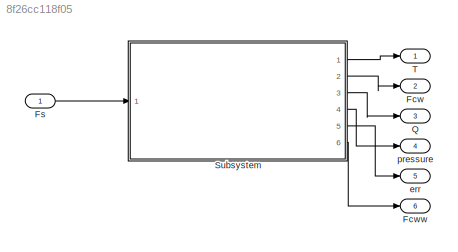
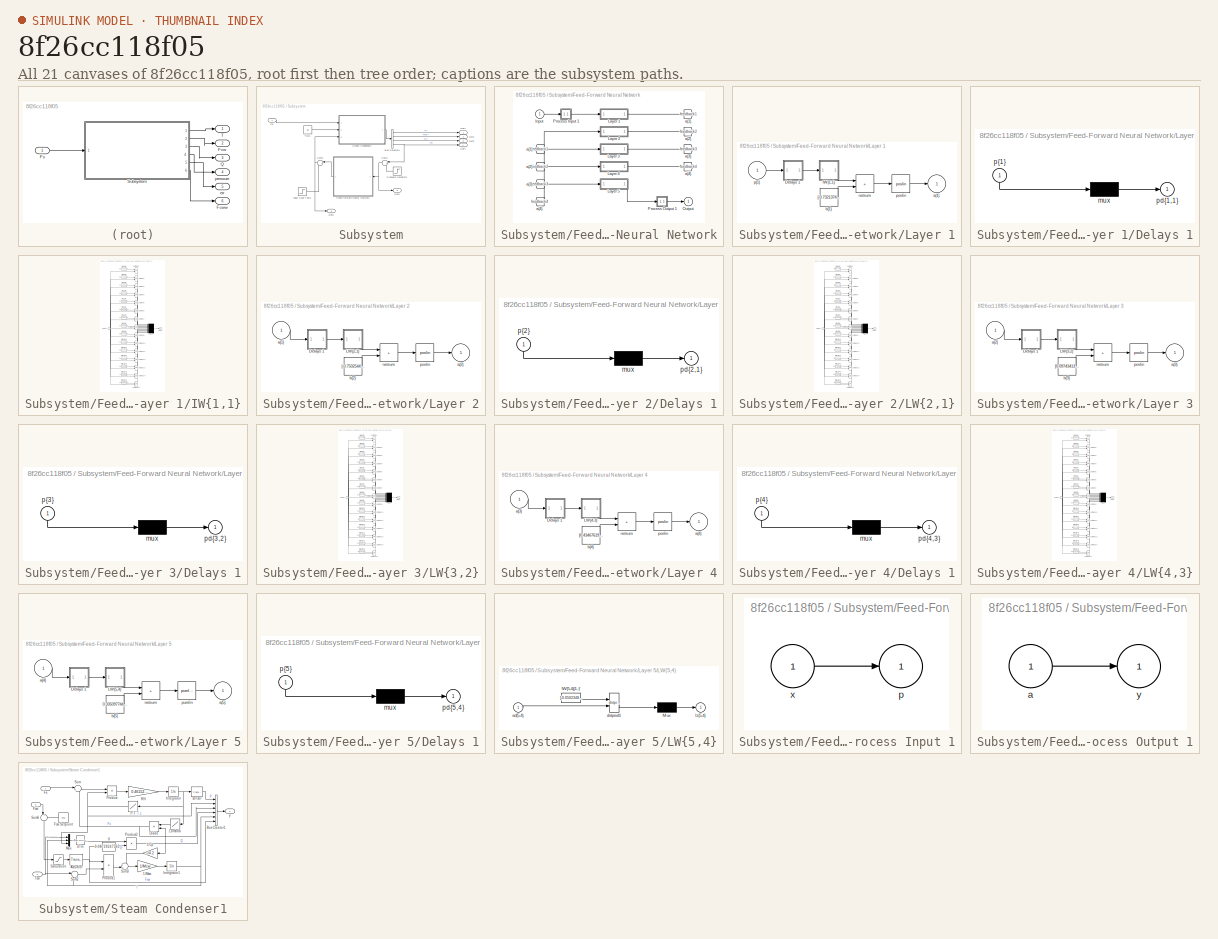
[diagram: thumbnail index - all 21 canvases of the model, root first then tree order]
MODEL slx_8f26cc118f05
KIND model
CONFIG AbsTol = auto
CONFIG EnableMultiTasking = off
CONFIG FixedStep = 0.02
CONFIG MaxStep = .1
CONFIG MinStep = auto
CONFIG RelTol = 1e-3
CONFIG SampleTimeConstraint = Unconstrained
CONFIG SolverName = VariableStepAuto
CONFIG StartTime = 0.0
CONFIG StopTime = 40
WORKSPACE source: mxarray member
WORKSPACE T = [0 0.05 0.1 0.15 0.2 0.25 0.3 0.35 0.4 0.45 0.5 0.55 ... (701 elements, 701x1)]
WORKSPACE U = [3.99594136536 3.99594136536 3.99594136536 3.99594136536 3.99594136536 3.99594136536 3.99594136536 3.99594136536 3.99594136536 3.99594136536 3.99594136536 3.99594136536 ... (701 elements, 701x1)]
BLOCK [Outport] Fcw
  Port = 2
  VectorParamsAs1DForOutWhenUnconnected = off
BLOCK [Outport] Fcww
  Port = 6
BLOCK [Inport] Fs
BLOCK [Outport] Q
  Port = 3
  VectorParamsAs1DForOutWhenUnconnected = off
BLOCK [SubSystem] Subsystem
  Ports = [1, 6]
BLOCK [BusSelector] Subsystem/Bus Selector1
  OutputSignals = T,Fcw,Q,P
  Ports = [1, 4]
BLOCK [SubSystem] Subsystem/Feed-Forward Neural Network
  Ports = [1, 1]
BLOCK [From] Subsystem/Feed-Forward Neural Network/ a{1} 
  GotoTag = feedback1
BLOCK [From] Subsystem/Feed-Forward Neural Network/ a{2} 
  GotoTag = feedback2
BLOCK [From] Subsystem/Feed-Forward Neural Network/ a{3} 
  GotoTag = feedback3
BLOCK [From] Subsystem/Feed-Forward Neural Network/ a{4} 
  GotoTag = feedback4
BLOCK [Inport] Subsystem/Feed-Forward Neural Network/Input
  PortDimensions = 1
BLOCK [SubSystem] Subsystem/Feed-Forward Neural Network/Layer 1
  Ports = [1, 1]
BLOCK [SubSystem] Subsystem/Feed-Forward Neural Network/Layer 1/Delays 1
  Ports = [1, 1]
BLOCK [Mux] Subsystem/Feed-Forward Neural Network/Layer 1/Delays 1/mux
  Inputs = 1
  Ports = [1, 1]
BLOCK [Outport] Subsystem/Feed-Forward Neural Network/Layer 1/Delays 1/pd{1,1}
BLOCK [Inport] Subsystem/Feed-Forward Neural Network/Layer 1/Delays 1/p{1}
  NameLocation = left
  PortDimensions = 1
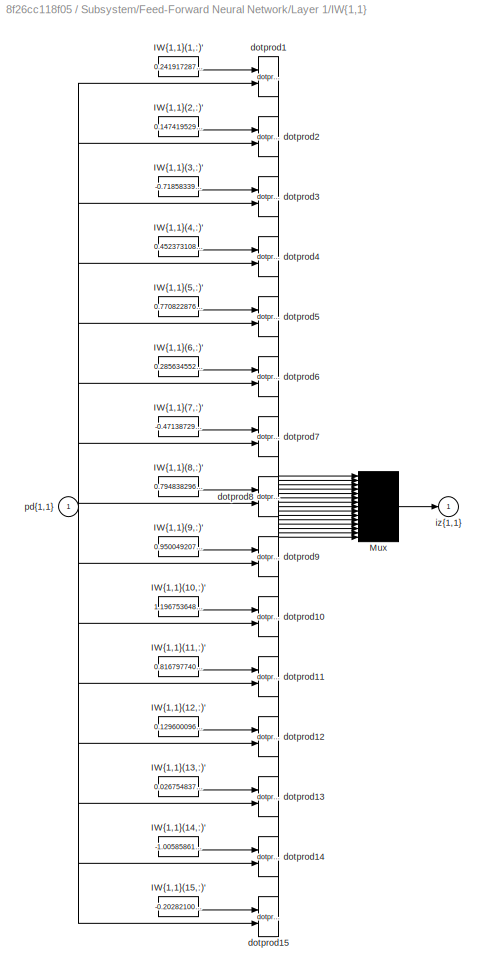
BLOCK [SubSystem] Subsystem/Feed-Forward Neural Network/Layer 1/IW{1,1}
  Ports = [1, 1]
BLOCK [Constant] Subsystem/Feed-Forward Neural Network/Layer 1/IW{1,1}/IW{1,1}(1,:)'
  Value = 0.241917287870616615208518851432017982006072998046875
BLOCK [Constant] Subsystem/Feed-Forward Neural Network/Layer 1/IW{1,1}/IW{1,1}(10,:)'
  Value = 1.1967536482262854935498808117699809372425079345703125
BLOCK [Constant] Subsystem/Feed-Forward Neural Network/Layer 1/IW{1,1}/IW{1,1}(11,:)'
  Value = 0.81679774074934996530572561823646537959575653076171875
BLOCK [Constant] Subsystem/Feed-Forward Neural Network/Layer 1/IW{1,1}/IW{1,1}(12,:)'
  Value = 0.1296000966646248253599793542889528907835483551025390625
BLOCK [Constant] Subsystem/Feed-Forward Neural Network/Layer 1/IW{1,1}/IW{1,1}(13,:)'
  Value = 0.0267548371751498148540804322692565619945526123046875
BLOCK [Constant] Subsystem/Feed-Forward Neural Network/Layer 1/IW{1,1}/IW{1,1}(14,:)'
  Value = -1.0058586180168400669998618468525819480419158935546875
BLOCK [Constant] Subsystem/Feed-Forward Neural Network/Layer 1/IW{1,1}/IW{1,1}(15,:)'
  Value = -0.2028210065283138074931912342435680329799652099609375
BLOCK [Constant] Subsystem/Feed-Forward Neural Network/Layer 1/IW{1,1}/IW{1,1}(2,:)'
  Value = 0.147419529682396355241280616610310971736907958984375
BLOCK [Constant] Subsystem/Feed-Forward Neural Network/Layer 1/IW{1,1}/IW{1,1}(3,:)'
  Value = -0.71858339572736407152575566215091384947299957275390625
BLOCK [Constant] Subsystem/Feed-Forward Neural Network/Layer 1/IW{1,1}/IW{1,1}(4,:)'
  Value = 0.4523731081616200189188248259597457945346832275390625
BLOCK [Constant] Subsystem/Feed-Forward Neural Network/Layer 1/IW{1,1}/IW{1,1}(5,:)'
  Value = 0.77082287627277501496081413279171101748943328857421875
BLOCK [Constant] Subsystem/Feed-Forward Neural Network/Layer 1/IW{1,1}/IW{1,1}(6,:)'
  Value = 0.28563455205772847467216024597291834652423858642578125
BLOCK [Constant] Subsystem/Feed-Forward Neural Network/Layer 1/IW{1,1}/IW{1,1}(7,:)'
  Value = -0.471387297613350852998337359167635440826416015625
BLOCK [Constant] Subsystem/Feed-Forward Neural Network/Layer 1/IW{1,1}/IW{1,1}(8,:)'
  Value = 0.79483829672026484747249241991085000336170196533203125
BLOCK [Constant] Subsystem/Feed-Forward Neural Network/Layer 1/IW{1,1}/IW{1,1}(9,:)'
  Value = 0.95004920748474652736348389225895516574382781982421875
BLOCK [Mux] Subsystem/Feed-Forward Neural Network/Layer 1/IW{1,1}/Mux
  Inputs = 15
  Ports = [15, 1]
BLOCK [Reference] Subsystem/Feed-Forward Neural Network/Layer 1/IW{1,1}/dotprod1  REF=neural/Weight Functions/dotprod
  Ports = [2, 1]
  SourceBlock = neural/Weight Functions/dotprod
  SourceType = DOTPROD
BLOCK [Reference] Subsystem/Feed-Forward Neural Network/Layer 1/IW{1,1}/dotprod10  REF=neural/Weight Functions/dotprod
  Ports = [2, 1]
  SourceBlock = neural/Weight Functions/dotprod
  SourceType = DOTPROD
BLOCK [Reference] Subsystem/Feed-Forward Neural Network/Layer 1/IW{1,1}/dotprod11  REF=neural/Weight Functions/dotprod
  Ports = [2, 1]
  SourceBlock = neural/Weight Functions/dotprod
  SourceType = DOTPROD
BLOCK [Reference] Subsystem/Feed-Forward Neural Network/Layer 1/IW{1,1}/dotprod12  REF=neural/Weight Functions/dotprod
  Ports = [2, 1]
  SourceBlock = neural/Weight Functions/dotprod
  SourceType = DOTPROD
BLOCK [Reference] Subsystem/Feed-Forward Neural Network/Layer 1/IW{1,1}/dotprod13  REF=neural/Weight Functions/dotprod
  Ports = [2, 1]
  SourceBlock = neural/Weight Functions/dotprod
  SourceType = DOTPROD
BLOCK [Reference] Subsystem/Feed-Forward Neural Network/Layer 1/IW{1,1}/dotprod14  REF=neural/Weight Functions/dotprod
  Ports = [2, 1]
  SourceBlock = neural/Weight Functions/dotprod
  SourceType = DOTPROD
BLOCK [Reference] Subsystem/Feed-Forward Neural Network/Layer 1/IW{1,1}/dotprod15  REF=neural/Weight Functions/dotprod
  Ports = [2, 1]
  SourceBlock = neural/Weight Functions/dotprod
  SourceType = DOTPROD
BLOCK [Reference] Subsystem/Feed-Forward Neural Network/Layer 1/IW{1,1}/dotprod2  REF=neural/Weight Functions/dotprod
  Ports = [2, 1]
  SourceBlock = neural/Weight Functions/dotprod
  SourceType = DOTPROD
BLOCK [Reference] Subsystem/Feed-Forward Neural Network/Layer 1/IW{1,1}/dotprod3  REF=neural/Weight Functions/dotprod
  Ports = [2, 1]
  SourceBlock = neural/Weight Functions/dotprod
  SourceType = DOTPROD
BLOCK [Reference] Subsystem/Feed-Forward Neural Network/Layer 1/IW{1,1}/dotprod4  REF=neural/Weight Functions/dotprod
  Ports = [2, 1]
  SourceBlock = neural/Weight Functions/dotprod
  SourceType = DOTPROD
BLOCK [Reference] Subsystem/Feed-Forward Neural Network/Layer 1/IW{1,1}/dotprod5  REF=neural/Weight Functions/dotprod
  Ports = [2, 1]
  SourceBlock = neural/Weight Functions/dotprod
  SourceType = DOTPROD
BLOCK [Reference] Subsystem/Feed-Forward Neural Network/Layer 1/IW{1,1}/dotprod6  REF=neural/Weight Functions/dotprod
  Ports = [2, 1]
  SourceBlock = neural/Weight Functions/dotprod
  SourceType = DOTPROD
BLOCK [Reference] Subsystem/Feed-Forward Neural Network/Layer 1/IW{1,1}/dotprod7  REF=neural/Weight Functions/dotprod
  Ports = [2, 1]
  SourceBlock = neural/Weight Functions/dotprod
  SourceType = DOTPROD
BLOCK [Reference] Subsystem/Feed-Forward Neural Network/Layer 1/IW{1,1}/dotprod8  REF=neural/Weight Functions/dotprod
  Ports = [2, 1]
  SourceBlock = neural/Weight Functions/dotprod
  SourceType = DOTPROD
BLOCK [Reference] Subsystem/Feed-Forward Neural Network/Layer 1/IW{1,1}/dotprod9  REF=neural/Weight Functions/dotprod
  Ports = [2, 1]
  SourceBlock = neural/Weight Functions/dotprod
  SourceType = DOTPROD
BLOCK [Outport] Subsystem/Feed-Forward Neural Network/Layer 1/IW{1,1}/iz{1,1}
BLOCK [Inport] Subsystem/Feed-Forward Neural Network/Layer 1/IW{1,1}/pd{1,1}
  PortDimensions = 1
BLOCK [Outport] Subsystem/Feed-Forward Neural Network/Layer 1/a{1}
  InitialOutput = [0;0;0;0;0;0;0;0;0;0;0;0;0;0;0]
BLOCK [Constant] Subsystem/Feed-Forward Neural Network/Layer 1/b{1}
  Value = [-0.7321374980240575869316899115801788866519927978515625;-0.9382209025100969324029165363754145801067352294921875;0.6190491347314048820038578924140892922878265380859375;-0.1727849904899415867109979672022745944559574127197265625;-0.218133580241897551132979060639627277851104736328125;-0.221794119455726523870708888352965004742145538330078125;-0.10137424593365264302580186495106318034231662750244140625;...<+454ch>
BLOCK [Sum] Subsystem/Feed-Forward Neural Network/Layer 1/netsum
  IconShape = rectangular
  InputSameDT = on
  Inputs = 2
  OutDataTypeStr = Inherit: Same as first input
  Ports = [2, 1]
  SaturateOnIntegerOverflow = on
BLOCK [Reference] Subsystem/Feed-Forward Neural Network/Layer 1/poslin  REF=neural/Transfer Functions/poslin
  Ports = [1, 1]
  SourceBlock = neural/Transfer Functions/poslin
  SourceType = POSLIN
BLOCK [Inport] Subsystem/Feed-Forward Neural Network/Layer 1/p{1}
  PortDimensions = 1
BLOCK [SubSystem] Subsystem/Feed-Forward Neural Network/Layer 2
  Ports = [1, 1]
BLOCK [SubSystem] Subsystem/Feed-Forward Neural Network/Layer 2/Delays 1
  Ports = [1, 1]
BLOCK [Mux] Subsystem/Feed-Forward Neural Network/Layer 2/Delays 1/mux
  Inputs = 1
  Ports = [1, 1]
BLOCK [Outport] Subsystem/Feed-Forward Neural Network/Layer 2/Delays 1/pd{2,1}
BLOCK [Inport] Subsystem/Feed-Forward Neural Network/Layer 2/Delays 1/p{2}
  NameLocation = left
  PortDimensions = 15
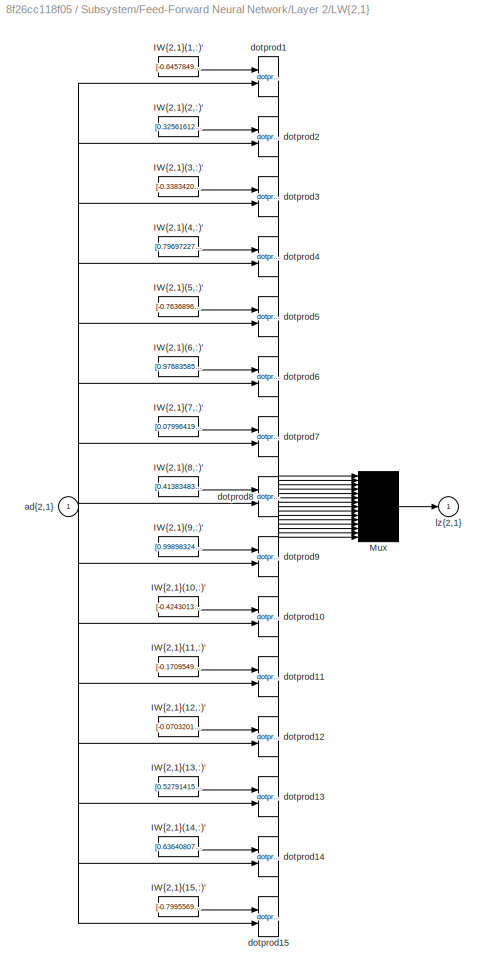
BLOCK [SubSystem] Subsystem/Feed-Forward Neural Network/Layer 2/LW{2,1}
  Ports = [1, 1]
BLOCK [Constant] Subsystem/Feed-Forward Neural Network/Layer 2/LW{2,1}/IW{2,1}(1,:)'
  Value = [-0.6457849324217816988635831876308657228946685791015625;-0.643766092226467190329231016221456229686737060546875;-0.63161180496894697711240951321087777614593505859375;-0.0878846663125170124430951545946300029754638671875;0.0675439035340004156893201070488430559635162353515625;0.3850639727730376105085952076478861272335052490234375;-0.897336227775257899708094555535353720188140869140625;0.48006465597555...<+421ch>
BLOCK [Constant] Subsystem/Feed-Forward Neural Network/Layer 2/LW{2,1}/IW{2,1}(10,:)'
  Value = [-0.4243013103697255150592582140234299004077911376953125;-0.0630636001920052979841102569480426609516143798828125;-0.261951995923644875841063139887410216033458709716796875;0.583812871633243357649689642130397260189056396484375;0.2295210394552672783508029397125937975943088531494140625;-0.76428735103558020913538939566933549940586090087890625;-0.553496390046050112943021304090507328510284423828125;0.220...<+446ch>
BLOCK [Constant] Subsystem/Feed-Forward Neural Network/Layer 2/LW{2,1}/IW{2,1}(11,:)'
  Value = [-0.170954922213783166995426654466427862644195556640625;0.82426494847924569597807931131683290004730224609375;-0.97343359906549498106187456869520246982574462890625;0.262139998427187048690711890230886638164520263671875;0.0522049315911223832387122456566430628299713134765625;0.0990802140303959077982653980143368244171142578125;0.2814358459318511140878626974881626665592193603515625;0.5787278872838108600...<+417ch>
BLOCK [Constant] Subsystem/Feed-Forward Neural Network/Layer 2/LW{2,1}/IW{2,1}(12,:)'
  Value = [-0.0703201167497253809557378190220333635807037353515625;-0.7919768504412429965810815701843239367008209228515625;0.06419107271674366621549978617622400633990764617919921875;-0.317608463431375775964937702156021259725093841552734375;0.7925487488476712361062936906819231808185577392578125;0.00801786996665575062148700880015894654206931591033935546875;-0.04781273830820934739316285799759498331695795059204...<+453ch>
BLOCK [Constant] Subsystem/Feed-Forward Neural Network/Layer 2/LW{2,1}/IW{2,1}(13,:)'
  Value = [0.5279141569839131964414491449133493006229400634765625;0.4910921474034346534409678497468121349811553955078125;-0.606683617264736074758957329322583973407745361328125;-0.8382751537393726692926065879873931407928466796875;0.414506970630843074587801311281509697437286376953125;0.7809513583688765248069785229745320975780487060546875;0.3076240451915472906563309152261354029178619384765625;-0.58794428098961...<+422ch>
BLOCK [Constant] Subsystem/Feed-Forward Neural Network/Layer 2/LW{2,1}/IW{2,1}(14,:)'
  Value = [0.636408077815341588490127833210863173007965087890625;0.4725349111932770629351807656348682940006256103515625;-0.8132589664898139947268873584107495844364166259765625;0.554481073097886412170964831602759659290313720703125;0.5627541035985543782516060673515312373638153076171875;0.597920557625758686270955877262167632579803466796875;0.498262926207038159276407895958982408046722412109375;-0.82666690520893...<+428ch>
BLOCK [Constant] Subsystem/Feed-Forward Neural Network/Layer 2/LW{2,1}/IW{2,1}(15,:)'
  Value = [-0.799556919609016869543438588152639567852020263671875;0.12372285056327481100879595032893121242523193359375;-0.3508058136455447506563132265000604093074798583984375;0.982529142477143846434728402527980506420135498046875;-0.2530487716218956517622018509428016841411590576171875;0.44291456538828744005087401092168875038623809814453125;0.499890054502398040181532223868998698890209197998046875;0.5652153870...<+434ch>
BLOCK [Constant] Subsystem/Feed-Forward Neural Network/Layer 2/LW{2,1}/IW{2,1}(2,:)'
  Value = [0.325616123921948830144401654251851141452789306640625;-0.2807301730358393587749787911889143288135528564453125;0.19442270067570976976867314078845083713531494140625;-0.7966612127504897333807321047061122953891754150390625;-0.7816915759150828701962154809734784066677093505859375;0.1133396699280251329611246546846814453601837158203125;-0.854229401802047760838831891305744647979736328125;-0.53034617050419...<+426ch>
BLOCK [Constant] Subsystem/Feed-Forward Neural Network/Layer 2/LW{2,1}/IW{2,1}(3,:)'
  Value = [-0.33834200959339089109789711073972284793853759765625;-0.8865906218634176383375233854167163372039794921875;-0.4001260198204221740780894833733327686786651611328125;1.02120211881773759188263284158892929553985595703125;0.70838934016579579999728366601630114018917083740234375;-0.1764984869556638358290001633577048778533935546875;-0.8229450806505591575756852762424387037754058837890625;0.5297758956397949...<+436ch>
BLOCK [Constant] Subsystem/Feed-Forward Neural Network/Layer 2/LW{2,1}/IW{2,1}(4,:)'
  Value = [0.7969722756685990727731905280961655080318450927734375;0.0437713473225584959180878286133520305156707763671875;-0.5997826501763905415742783588939346373081207275390625;-0.253376872142529852016679114967701025307178497314453125;-0.253880698516011638066203204289195127785205841064453125;-0.8411563306374827408973260389757342636585235595703125;0.5967017282279047929449689036118797957897186279296875;0.9014...<+430ch>
BLOCK [Constant] Subsystem/Feed-Forward Neural Network/Layer 2/LW{2,1}/IW{2,1}(5,:)'
  Value = [-0.763689603106578740465693044825457036495208740234375;-0.3283020506461509224749306667945347726345062255859375;-0.8876177150644160018799766476149670779705047607421875;-0.420784292798006831493040635905344970524311065673828125;-0.25756149257502658489471514258184470236301422119140625;0.5461900791356344431193292621173895895481109619140625;0.759983566893656092844366867211647331714630126953125;0.895022...<+432ch>
BLOCK [Constant] Subsystem/Feed-Forward Neural Network/Layer 2/LW{2,1}/IW{2,1}(6,:)'
  Value = [0.9768358575699611634490793221630156040191650390625;-0.6486619406486784367160680631059221923351287841796875;0.958483109691663504037251186673529446125030517578125;-0.7977771644401168149585146238678134977817535400390625;0.71947601476091549432823057941277511417865753173828125;-0.1375190134754562254482124217247474007308483123779296875;0.399138242939769793959925436865887604653835296630859375;-0.635155...<+437ch>
BLOCK [Constant] Subsystem/Feed-Forward Neural Network/Layer 2/LW{2,1}/IW{2,1}(7,:)'
  Value = [0.0799641980758583059696320560760796070098876953125;-0.582106652013729242156614418490789830684661865234375;-0.62139260847947508370481273232144303619861602783203125;-0.4272172387787180891649541081278584897518157958984375;-0.987011545743446294665091045317240059375762939453125;0.215731814525891518741218533250503242015838623046875;-0.7366046234336669495945670860237441956996917724609375;-0.36860428836...<+434ch>
BLOCK [Constant] Subsystem/Feed-Forward Neural Network/Layer 2/LW{2,1}/IW{2,1}(8,:)'
  Value = [0.413834838645525504574607111862860620021820068359375;0.8103071180089280733938039702479727566242218017578125;-0.43990784105602587228389666051953099668025970458984375;-0.70097915133558508227196170992101542651653289794921875;-0.78846063140701172500257598585449159145355224609375;0.463939307580775894823688076940015889704227447509765625;0.250627654122016263471550701069645583629608154296875;-0.44370613...<+435ch>
BLOCK [Constant] Subsystem/Feed-Forward Neural Network/Layer 2/LW{2,1}/IW{2,1}(9,:)'
  Value = [0.9989832401954092944151852861978113651275634765625;0.35078235467249374579523646389134228229522705078125;-0.892491215582572383624437861726619303226470947265625;0.010856284915405911561947505106218159198760986328125;0.3358322431472473557079183592577464878559112548828125;-0.7903735160530007686219278184580616652965545654296875;-0.7792930387153027549373973670299164950847625732421875;0.3700569453232185...<+427ch>
BLOCK [Mux] Subsystem/Feed-Forward Neural Network/Layer 2/LW{2,1}/Mux
  Inputs = 15
  Ports = [15, 1]
BLOCK [Inport] Subsystem/Feed-Forward Neural Network/Layer 2/LW{2,1}/ad{2,1}
  PortDimensions = 15
BLOCK [Reference] Subsystem/Feed-Forward Neural Network/Layer 2/LW{2,1}/dotprod1  REF=neural/Weight Functions/dotprod
  Ports = [2, 1]
  SourceBlock = neural/Weight Functions/dotprod
  SourceType = DOTPROD
BLOCK [Reference] Subsystem/Feed-Forward Neural Network/Layer 2/LW{2,1}/dotprod10  REF=neural/Weight Functions/dotprod
  Ports = [2, 1]
  SourceBlock = neural/Weight Functions/dotprod
  SourceType = DOTPROD
BLOCK [Reference] Subsystem/Feed-Forward Neural Network/Layer 2/LW{2,1}/dotprod11  REF=neural/Weight Functions/dotprod
  Ports = [2, 1]
  SourceBlock = neural/Weight Functions/dotprod
  SourceType = DOTPROD
BLOCK [Reference] Subsystem/Feed-Forward Neural Network/Layer 2/LW{2,1}/dotprod12  REF=neural/Weight Functions/dotprod
  Ports = [2, 1]
  SourceBlock = neural/Weight Functions/dotprod
  SourceType = DOTPROD
BLOCK [Reference] Subsystem/Feed-Forward Neural Network/Layer 2/LW{2,1}/dotprod13  REF=neural/Weight Functions/dotprod
  Ports = [2, 1]
  SourceBlock = neural/Weight Functions/dotprod
  SourceType = DOTPROD
BLOCK [Reference] Subsystem/Feed-Forward Neural Network/Layer 2/LW{2,1}/dotprod14  REF=neural/Weight Functions/dotprod
  Ports = [2, 1]
  SourceBlock = neural/Weight Functions/dotprod
  SourceType = DOTPROD
BLOCK [Reference] Subsystem/Feed-Forward Neural Network/Layer 2/LW{2,1}/dotprod15  REF=neural/Weight Functions/dotprod
  Ports = [2, 1]
  SourceBlock = neural/Weight Functions/dotprod
  SourceType = DOTPROD
BLOCK [Reference] Subsystem/Feed-Forward Neural Network/Layer 2/LW{2,1}/dotprod2  REF=neural/Weight Functions/dotprod
  Ports = [2, 1]
  SourceBlock = neural/Weight Functions/dotprod
  SourceType = DOTPROD
BLOCK [Reference] Subsystem/Feed-Forward Neural Network/Layer 2/LW{2,1}/dotprod3  REF=neural/Weight Functions/dotprod
  Ports = [2, 1]
  SourceBlock = neural/Weight Functions/dotprod
  SourceType = DOTPROD
BLOCK [Reference] Subsystem/Feed-Forward Neural Network/Layer 2/LW{2,1}/dotprod4  REF=neural/Weight Functions/dotprod
  Ports = [2, 1]
  SourceBlock = neural/Weight Functions/dotprod
  SourceType = DOTPROD
BLOCK [Reference] Subsystem/Feed-Forward Neural Network/Layer 2/LW{2,1}/dotprod5  REF=neural/Weight Functions/dotprod
  Ports = [2, 1]
  SourceBlock = neural/Weight Functions/dotprod
  SourceType = DOTPROD
BLOCK [Reference] Subsystem/Feed-Forward Neural Network/Layer 2/LW{2,1}/dotprod6  REF=neural/Weight Functions/dotprod
  Ports = [2, 1]
  SourceBlock = neural/Weight Functions/dotprod
  SourceType = DOTPROD
BLOCK [Reference] Subsystem/Feed-Forward Neural Network/Layer 2/LW{2,1}/dotprod7  REF=neural/Weight Functions/dotprod
  Ports = [2, 1]
  SourceBlock = neural/Weight Functions/dotprod
  SourceType = DOTPROD
BLOCK [Reference] Subsystem/Feed-Forward Neural Network/Layer 2/LW{2,1}/dotprod8  REF=neural/Weight Functions/dotprod
  Ports = [2, 1]
  SourceBlock = neural/Weight Functions/dotprod
  SourceType = DOTPROD
BLOCK [Reference] Subsystem/Feed-Forward Neural Network/Layer 2/LW{2,1}/dotprod9  REF=neural/Weight Functions/dotprod
  Ports = [2, 1]
  SourceBlock = neural/Weight Functions/dotprod
  SourceType = DOTPROD
BLOCK [Outport] Subsystem/Feed-Forward Neural Network/Layer 2/LW{2,1}/lz{2,1}
BLOCK [Inport] Subsystem/Feed-Forward Neural Network/Layer 2/a{1} 
  PortDimensions = 15
BLOCK [Outport] Subsystem/Feed-Forward Neural Network/Layer 2/a{2}
  InitialOutput = [0;0;0;0;0;0;0;0;0;0;0;0;0;0;0]
BLOCK [Constant] Subsystem/Feed-Forward Neural Network/Layer 2/b{2}
  Value = [-0.750254482560374302835271009826101362705230712890625;-0.951131967899252028786349910660646855831146240234375;-0.425096424542992068484892342894454486668109893798828125;-0.395482674730982364241782534008962102234363555908203125;0.276521074889534812513147699064575135707855224609375;0.535212117212503724061889442964456975460052490234375;0.99103923475844613033558516690391115844249725341796875;-0.097343...<+437ch>
BLOCK [Sum] Subsystem/Feed-Forward Neural Network/Layer 2/netsum
  IconShape = rectangular
  InputSameDT = on
  Inputs = 2
  OutDataTypeStr = Inherit: Same as first input
  Ports = [2, 1]
  SaturateOnIntegerOverflow = on
BLOCK [Reference] Subsystem/Feed-Forward Neural Network/Layer 2/poslin  REF=neural/Transfer Functions/poslin
  Ports = [1, 1]
  SourceBlock = neural/Transfer Functions/poslin
  SourceType = POSLIN
BLOCK [SubSystem] Subsystem/Feed-Forward Neural Network/Layer 3
  Ports = [1, 1]
BLOCK [SubSystem] Subsystem/Feed-Forward Neural Network/Layer 3/Delays 1
  Ports = [1, 1]
BLOCK [Mux] Subsystem/Feed-Forward Neural Network/Layer 3/Delays 1/mux
  Inputs = 1
  Ports = [1, 1]
BLOCK [Outport] Subsystem/Feed-Forward Neural Network/Layer 3/Delays 1/pd{3,2}
BLOCK [Inport] Subsystem/Feed-Forward Neural Network/Layer 3/Delays 1/p{3}
  NameLocation = left
  PortDimensions = 15
BLOCK [SubSystem] Subsystem/Feed-Forward Neural Network/Layer 3/LW{3,2}
  Ports = [1, 1]
BLOCK [Constant] Subsystem/Feed-Forward Neural Network/Layer 3/LW{3,2}/IW{3,2}(1,:)'
  Value = [-0.07347884281256167327001094236038625240325927734375;0.61840770258758670507859278586693108081817626953125;0.8005017582493969552359658337081782519817352294921875;-0.2544500328198180394423388861468993127346038818359375;0.275233375677362890332489087086287327110767364501953125;-0.51656601115191314033125991045380942523479461669921875;0.6262256272215214192300436479854397475719451904296875;1.0352167510...<+426ch>
BLOCK [Constant] Subsystem/Feed-Forward Neural Network/Layer 3/LW{3,2}/IW{3,2}(10,:)'
  Value = [0.4054046139009506166672736071632243692874908447265625;-0.489226519023898465121646950137801468372344970703125;0.16188259861384646232096429230296052992343902587890625;0.76905186575705120066714925997075624763965606689453125;0.72275122526789281618420091035659424960613250732421875;-0.279153237437250900665475228379364125430583953857421875;0.445048886645755426005877097850316204130649566650390625;-0.006...<+442ch>
BLOCK [Constant] Subsystem/Feed-Forward Neural Network/Layer 3/LW{3,2}/IW{3,2}(11,:)'
  Value = [-0.692819246761199547535170495393685996532440185546875;-0.9589284506836308619170949896215461194515228271484375;0.430425029571680273221545576234348118305206298828125;0.26237746853802246249642848852090537548065185546875;0.1410184172399946145315396961450460366904735565185546875;0.45441163057096323196759612983441911637783050537109375;0.9722084837919402477979247123585082590579986572265625;-0.724084953...<+432ch>
BLOCK [Constant] Subsystem/Feed-Forward Neural Network/Layer 3/LW{3,2}/IW{3,2}(12,:)'
  Value = [0.90691413977249535349756115465424954891204833984375;0.8473512252408144096449404969462193548679351806640625;0.284121656867704519555672959540970623493194580078125;-0.2898526962423020325587685874779708683490753173828125;-0.646289884749394527574395397095941007137298583984375;-0.9567003707393870737263341652578674256801605224609375;-0.940016099461220111521697617718018591403961181640625;-0.564396812575...<+424ch>
BLOCK [Constant] Subsystem/Feed-Forward Neural Network/Layer 3/LW{3,2}/IW{3,2}(13,:)'
  Value = [0.0817681624829529329900879019987769424915313720703125;0.3073997780165058646417719501187093555927276611328125;-0.2516989390348756128190643721609376370906829833984375;0.88896374341652728556795182157657109200954437255859375;0.87507300512998498209782383128185756504535675048828125;0.856851354818488619713434673030860722064971923828125;0.1976529382039062532339102062906022183597087860107421875;-0.501496...<+440ch>
BLOCK [Constant] Subsystem/Feed-Forward Neural Network/Layer 3/LW{3,2}/IW{3,2}(14,:)'
  Value = [0.3594677964209338494327994339982978999614715576171875;0.8652271440971281979415152818546630442142486572265625;-0.2130306621080632345499594748616800643503665924072265625;-0.476954499087445416005692777616786770522594451904296875;-0.3318848384136205975636357834446243941783905029296875;0.75004804428943006033847495928057469427585601806640625;-0.75887602265938569612302444511442445218563079833984375;-0....<+432ch>
BLOCK [Constant] Subsystem/Feed-Forward Neural Network/Layer 3/LW{3,2}/IW{3,2}(15,:)'
  Value = [-0.926873963903094288951933776843361556529998779296875;-0.6729752629449488043889004984521307051181793212890625;0.61327854839882156579022876030649058520793914794921875;0.414994028783071067234544671009643934667110443115234375;0.71420625952947036640949818320223130285739898681640625;0.62815896838087159625985123057034797966480255126953125;0.64231420971789365825799222875502891838550567626953125;-0.6344...<+444ch>
BLOCK [Constant] Subsystem/Feed-Forward Neural Network/Layer 3/LW{3,2}/IW{3,2}(2,:)'
  Value = [-0.5756735894901312544646998503594659268856048583984375;0.4972377435523942512674011595663614571094512939453125;0.589315770777506298117032201844267547130584716796875;0.6290795458013025420740405024844221770763397216796875;-0.2255091370337301004411756366607733070850372314453125;-0.2528723847147100745047509917640127241611480712890625;-0.23338736274894156252912580384872853755950927734375;-0.8661074832...<+424ch>
BLOCK [Constant] Subsystem/Feed-Forward Neural Network/Layer 3/LW{3,2}/IW{3,2}(3,:)'
  Value = [-0.8029625246237832580931126358336769044399261474609375;-0.7596259640258387069167156369076110422611236572265625;0.07279440332663351942432683472361532039940357208251953125;0.314083181970030322904818831375450827181339263916015625;-0.89384215988824700094284025908564217388629913330078125;-0.59377545863063285747074360187980346381664276123046875;0.1692646999590492196130497859485330991446971893310546875...<+448ch>
BLOCK [Constant] Subsystem/Feed-Forward Neural Network/Layer 3/LW{3,2}/IW{3,2}(4,:)'
  Value = [0.64714894785567711466001128428615629673004150390625;0.0500903295252175251306425707298330962657928466796875;-0.1199288084794927211618187357089482247829437255859375;0.7045277806876912851663519177236594259738922119140625;-0.9354813119764047169013565508066676557064056396484375;0.328022716264994074197858253683079965412616729736328125;0.1509897194056277758278383771539665758609771728515625;-0.907101548...<+434ch>
BLOCK [Constant] Subsystem/Feed-Forward Neural Network/Layer 3/LW{3,2}/IW{3,2}(5,:)'
  Value = [-0.64998052523584082251772997551597654819488525390625;-0.3483327424735016553114519410883076488971710205078125;-0.5551892738572643537509065936319530010223388671875;0.0159070552395294724512542217098598484881222248077392578125;-0.291628649818918728175987098438781686127185821533203125;-0.3949767246108120133385455119423568248748779296875;0.1046868059475021539572736628542770631611347198486328125;0.4565...<+438ch>
BLOCK [Constant] Subsystem/Feed-Forward Neural Network/Layer 3/LW{3,2}/IW{3,2}(6,:)'
  Value = [-0.672860180430013610219930342282168567180633544921875;0.0928988798061369802638864712207578122615814208984375;0.5038927877348999828654996235854923725128173828125;0.271322777722753816220802036696113646030426025390625;-0.6317994211449775576738829840905964374542236328125;-0.909897785052851570952725523966364562511444091796875;-0.44986048835612990615118178538978099822998046875;0.5674729601664372236058...<+409ch>
BLOCK [Constant] Subsystem/Feed-Forward Neural Network/Layer 3/LW{3,2}/IW{3,2}(7,:)'
  Value = [0.3319744328222211660062157534412108361721038818359375;-0.20223849523360204472055556834675371646881103515625;-0.535260506952312198336585424840450286865234375;0.9800193831792254339774217442027293145656585693359375;0.6496406649583692516358723878511227667331695556640625;0.6077079965938481098675083558191545307636260986328125;-0.51782128171345209732834291571634821593761444091796875;0.29824973779517127...<+428ch>
BLOCK [Constant] Subsystem/Feed-Forward Neural Network/Layer 3/LW{3,2}/IW{3,2}(8,:)'
  Value = [0.7887787507084855764816211376455612480640411376953125;-0.16981322677390675579545131768099963665008544921875;-1.0864004786316134865131743936217390000820159912109375;-0.2424286362113993453792915033773169852793216705322265625;-0.434353102284060155202638497939915396273136138916015625;-0.12684184097254813661237449196050874888896942138671875;-0.09970884849092097323985939283375046215951442718505859375;...<+445ch>
BLOCK [Constant] Subsystem/Feed-Forward Neural Network/Layer 3/LW{3,2}/IW{3,2}(9,:)'
  Value = [0.0331164167025408406885844669886864721775054931640625;-0.63852447949041124530822344240732491016387939453125;0.420413397206550409901382181487861089408397674560546875;-0.79477789450197822151977788962540216743946075439453125;0.69748447462870000190804375961306504905223846435546875;0.71375481446864863510626264542224816977977752685546875;-0.589991171846909079334864145494066178798675537109375;0.8085072...<+431ch>
BLOCK [Mux] Subsystem/Feed-Forward Neural Network/Layer 3/LW{3,2}/Mux
  Inputs = 15
  Ports = [15, 1]
BLOCK [Inport] Subsystem/Feed-Forward Neural Network/Layer 3/LW{3,2}/ad{3,2}
  PortDimensions = 15
BLOCK [Reference] Subsystem/Feed-Forward Neural Network/Layer 3/LW{3,2}/dotprod1  REF=neural/Weight Functions/dotprod
  Ports = [2, 1]
  SourceBlock = neural/Weight Functions/dotprod
  SourceType = DOTPROD
BLOCK [Reference] Subsystem/Feed-Forward Neural Network/Layer 3/LW{3,2}/dotprod10  REF=neural/Weight Functions/dotprod
  Ports = [2, 1]
  SourceBlock = neural/Weight Functions/dotprod
  SourceType = DOTPROD
BLOCK [Reference] Subsystem/Feed-Forward Neural Network/Layer 3/LW{3,2}/dotprod11  REF=neural/Weight Functions/dotprod
  Ports = [2, 1]
  SourceBlock = neural/Weight Functions/dotprod
  SourceType = DOTPROD
BLOCK [Reference] Subsystem/Feed-Forward Neural Network/Layer 3/LW{3,2}/dotprod12  REF=neural/Weight Functions/dotprod
  Ports = [2, 1]
  SourceBlock = neural/Weight Functions/dotprod
  SourceType = DOTPROD
BLOCK [Reference] Subsystem/Feed-Forward Neural Network/Layer 3/LW{3,2}/dotprod13  REF=neural/Weight Functions/dotprod
  Ports = [2, 1]
  SourceBlock = neural/Weight Functions/dotprod
  SourceType = DOTPROD
BLOCK [Reference] Subsystem/Feed-Forward Neural Network/Layer 3/LW{3,2}/dotprod14  REF=neural/Weight Functions/dotprod
  Ports = [2, 1]
  SourceBlock = neural/Weight Functions/dotprod
  SourceType = DOTPROD
BLOCK [Reference] Subsystem/Feed-Forward Neural Network/Layer 3/LW{3,2}/dotprod15  REF=neural/Weight Functions/dotprod
  Ports = [2, 1]
  SourceBlock = neural/Weight Functions/dotprod
  SourceType = DOTPROD
BLOCK [Reference] Subsystem/Feed-Forward Neural Network/Layer 3/LW{3,2}/dotprod2  REF=neural/Weight Functions/dotprod
  Ports = [2, 1]
  SourceBlock = neural/Weight Functions/dotprod
  SourceType = DOTPROD
BLOCK [Reference] Subsystem/Feed-Forward Neural Network/Layer 3/LW{3,2}/dotprod3  REF=neural/Weight Functions/dotprod
  Ports = [2, 1]
  SourceBlock = neural/Weight Functions/dotprod
  SourceType = DOTPROD
BLOCK [Reference] Subsystem/Feed-Forward Neural Network/Layer 3/LW{3,2}/dotprod4  REF=neural/Weight Functions/dotprod
  Ports = [2, 1]
  SourceBlock = neural/Weight Functions/dotprod
  SourceType = DOTPROD
BLOCK [Reference] Subsystem/Feed-Forward Neural Network/Layer 3/LW{3,2}/dotprod5  REF=neural/Weight Functions/dotprod
  Ports = [2, 1]
  SourceBlock = neural/Weight Functions/dotprod
  SourceType = DOTPROD
BLOCK [Reference] Subsystem/Feed-Forward Neural Network/Layer 3/LW{3,2}/dotprod6  REF=neural/Weight Functions/dotprod
  Ports = [2, 1]
  SourceBlock = neural/Weight Functions/dotprod
  SourceType = DOTPROD
BLOCK [Reference] Subsystem/Feed-Forward Neural Network/Layer 3/LW{3,2}/dotprod7  REF=neural/Weight Functions/dotprod
  Ports = [2, 1]
  SourceBlock = neural/Weight Functions/dotprod
  SourceType = DOTPROD
BLOCK [Reference] Subsystem/Feed-Forward Neural Network/Layer 3/LW{3,2}/dotprod8  REF=neural/Weight Functions/dotprod
  Ports = [2, 1]
  SourceBlock = neural/Weight Functions/dotprod
  SourceType = DOTPROD
BLOCK [Reference] Subsystem/Feed-Forward Neural Network/Layer 3/LW{3,2}/dotprod9  REF=neural/Weight Functions/dotprod
  Ports = [2, 1]
  SourceBlock = neural/Weight Functions/dotprod
  SourceType = DOTPROD
BLOCK [Outport] Subsystem/Feed-Forward Neural Network/Layer 3/LW{3,2}/lz{3,2}
BLOCK [Inport] Subsystem/Feed-Forward Neural Network/Layer 3/a{2} 
  PortDimensions = 15
BLOCK [Outport] Subsystem/Feed-Forward Neural Network/Layer 3/a{3}
  InitialOutput = [0;0;0;0;0;0;0;0;0;0;0;0;0;0;0]
BLOCK [Constant] Subsystem/Feed-Forward Neural Network/Layer 3/b{3}
  Value = [0.0974341318992204274973545352622750215232372283935546875;0.3894864662652202103032550439820624887943267822265625;0.79895963427321226024702127688215114176273345947265625;-0.488633805010975752480817391187883913516998291015625;0.85762529852871927094071224928484298288822174072265625;0.4781444545470561191535807665786705911159515380859375;0.452503686633498214408888316029333509504795074462890625;-0.9908...<+447ch>
BLOCK [Sum] Subsystem/Feed-Forward Neural Network/Layer 3/netsum
  IconShape = rectangular
  InputSameDT = on
  Inputs = 2
  OutDataTypeStr = Inherit: Same as first input
  Ports = [2, 1]
  SaturateOnIntegerOverflow = on
BLOCK [Reference] Subsystem/Feed-Forward Neural Network/Layer 3/poslin  REF=neural/Transfer Functions/poslin
  Ports = [1, 1]
  SourceBlock = neural/Transfer Functions/poslin
  SourceType = POSLIN
BLOCK [SubSystem] Subsystem/Feed-Forward Neural Network/Layer 4
  Ports = [1, 1]
BLOCK [SubSystem] Subsystem/Feed-Forward Neural Network/Layer 4/Delays 1
  Ports = [1, 1]
BLOCK [Mux] Subsystem/Feed-Forward Neural Network/Layer 4/Delays 1/mux
  Inputs = 1
  Ports = [1, 1]
BLOCK [Outport] Subsystem/Feed-Forward Neural Network/Layer 4/Delays 1/pd{4,3}
BLOCK [Inport] Subsystem/Feed-Forward Neural Network/Layer 4/Delays 1/p{4}
  NameLocation = left
  PortDimensions = 15
BLOCK [SubSystem] Subsystem/Feed-Forward Neural Network/Layer 4/LW{4,3}
  Ports = [1, 1]
BLOCK [Constant] Subsystem/Feed-Forward Neural Network/Layer 4/LW{4,3}/IW{4,3}(1,:)'
  Value = [0.31553842195222447930547104988363571465015411376953125;0.0075615715523118520735579295433126389980316162109375;-0.94721511754231624280464529874734580516815185546875;0.85481367567669208629155264134169556200504302978515625;0.75380956202653182085526850642054341733455657958984375;0.0077755469209772609673336773994378745555877685546875;-0.429675723526083519487883677356876432895660400390625;0.6675906704...<+437ch>
BLOCK [Constant] Subsystem/Feed-Forward Neural Network/Layer 4/LW{4,3}/IW{4,3}(10,:)'
  Value = [-0.7244742149609673109722507433616556227207183837890625;0.334240600080149885542368792812339961528778076171875;-0.28139807062526023262449825779185630381107330322265625;-0.8904164201605351269819266235572285950183868408203125;0.606728251104347027222729593631811439990997314453125;-0.732992280677375429576159149291925132274627685546875;-0.78155895308659584230781547375954687595367431640625;-0.8946268730...<+429ch>
BLOCK [Constant] Subsystem/Feed-Forward Neural Network/Layer 4/LW{4,3}/IW{4,3}(11,:)'
  Value = [0.655234895033436348654731773422099649906158447265625;0.172879229357835839664403465576469898223876953125;-0.6667947658530162247103589834296144545078277587890625;-0.403369405118854162939356911010690964758396148681640625;-0.1318544828545334113290010691343923099339008331298828125;-0.9568882255930060143356286062044091522693634033203125;-0.106920408301278413443213821665267460048198699951171875;-0.1867...<+446ch>
BLOCK [Constant] Subsystem/Feed-Forward Neural Network/Layer 4/LW{4,3}/IW{4,3}(12,:)'
  Value = [-0.697213055181517216141173776122741401195526123046875;0.3502248328102306462739079506718553602695465087890625;-0.50701362367857527591041844061692245304584503173828125;-0.952933150655576266530033535673283040523529052734375;-0.142730264666183381816466635427786968648433685302734375;0.11968141174501933932106112479232251644134521484375;0.164693067035057427727195999977993778884410858154296875;0.4257510...<+442ch>
BLOCK [Constant] Subsystem/Feed-Forward Neural Network/Layer 4/LW{4,3}/IW{4,3}(13,:)'
  Value = [0.1393394288591347784933560660647344775497913360595703125;-0.2779559016106782909361072597675956785678863525390625;-0.3793105443459456882493441298720426857471466064453125;-0.561286457886370993008995355921797454357147216796875;0.115142610227820352264416214893572032451629638671875;-0.3983619638610218505192506199819035828113555908203125;0.07249072952965031346739266382428468205034732818603515625;0.867...<+440ch>
BLOCK [Constant] Subsystem/Feed-Forward Neural Network/Layer 4/LW{4,3}/IW{4,3}(14,:)'
  Value = [-0.2398428732506267813118228104940499179065227508544921875;0.24055685414217098383460324839688837528228759765625;0.5556503204465510492582325241528451442718505859375;0.400224819084944616331966926736640743911266326904296875;-0.514215186761521891867232625372707843780517578125;0.878819427746916570498569853953085839748382568359375;-0.39014020012771533085782493799342773854732513427734375;0.7076397254769...<+436ch>
BLOCK [Constant] Subsystem/Feed-Forward Neural Network/Layer 4/LW{4,3}/IW{4,3}(15,:)'
  Value = [0.5812185826402129773526894496171735227108001708984375;0.6223017702005704254730744651169516146183013916015625;-0.493328121690028431611807491208310239017009735107421875;0.5026308266314780670569462017738260328769683837890625;0.61199352026972253515424426950630731880664825439453125;0.961807272093718079730706449481658637523651123046875;1.046151678134404239273180792224593460559844970703125;-0.147295039...<+437ch>
BLOCK [Constant] Subsystem/Feed-Forward Neural Network/Layer 4/LW{4,3}/IW{4,3}(2,:)'
  Value = [-0.904890653772267850030175395659171044826507568359375;-0.0208113225532915446791548674809746444225311279296875;-0.8322529834342002885705369408242404460906982421875;-0.201960061930889001047262354404665529727935791015625;0.1648659289748206635550786813837476074695587158203125;0.293619332545560940417317397077567875385284423828125;0.601640573903069242334140653838403522968292236328125;0.698170959908910...<+417ch>
BLOCK [Constant] Subsystem/Feed-Forward Neural Network/Layer 4/LW{4,3}/IW{4,3}(3,:)'
  Value = [-0.268347504432777383964747741629253141582012176513671875;0.754097446770087831424689284176565706729888916015625;0.75263874515231499184864105700398795306682586669921875;-0.901842802270846899403977658948861062526702880859375;-0.9099732739126566993803635341464541852474212646484375;-0.384508835938118576081024002633057534694671630859375;0.78318313263372763000091936191893182694911956787109375;-0.150054...<+442ch>
BLOCK [Constant] Subsystem/Feed-Forward Neural Network/Layer 4/LW{4,3}/IW{4,3}(4,:)'
  Value = [-0.075559693607434808004796877867192961275577545166015625;-0.2937163741220889523475534588214941322803497314453125;0.140782807194338610567996283862157724797725677490234375;-0.327512148065631725213364688897854648530483245849609375;0.79690181259091763532609320463961921632289886474609375;-0.7225507278437108826807389050372876226902008056640625;0.1606545464276571688611028321247431449592113494873046875;...<+449ch>
BLOCK [Constant] Subsystem/Feed-Forward Neural Network/Layer 4/LW{4,3}/IW{4,3}(5,:)'
  Value = [-0.50245265530528182562619576856377534568309783935546875;-0.1011128868565034366611143923364579677581787109375;-0.689020855120729525111755719990469515323638916015625;0.443731904654277753419222563024959526956081390380859375;0.54225389484726049804663716713548637926578521728515625;-0.04885413240487412878110262681730091571807861328125;0.784584663933904469246272128657437860965728759765625;0.80781844389...<+421ch>
BLOCK [Constant] Subsystem/Feed-Forward Neural Network/Layer 4/LW{4,3}/IW{4,3}(6,:)'
  Value = [0.430090026592353069645469076931476593017578125;0.9270605736868537949391111396835185587406158447265625;-0.150738275383345499136567013920284807682037353515625;0.59681032440129266891659653992974199354648590087890625;-0.424740295258490885288438221323303878307342529296875;-0.2750814383625079795336887400480918586254119873046875;0.8994617874874879515090242421138100326061248779296875;0.86700321701421056...<+442ch>
BLOCK [Constant] Subsystem/Feed-Forward Neural Network/Layer 4/LW{4,3}/IW{4,3}(7,:)'
  Value = [0.703938334239562646388321809354238212108612060546875;-0.9154044041709143986196295372792519629001617431640625;-0.71674676776983214931959764726343564689159393310546875;0.0898117964893430098527460359036922454833984375;0.0902527291814633481070728748818510212004184722900390625;0.5762268567970945110090497109922580420970916748046875;0.11853881328069211520404024895469774492084980010986328125;0.317823384...<+446ch>
BLOCK [Constant] Subsystem/Feed-Forward Neural Network/Layer 4/LW{4,3}/IW{4,3}(8,:)'
  Value = [-0.4369846097628933279111151932738721370697021484375;0.945916668281269412688061493099667131900787353515625;-0.4631223572054337100922793979407288134098052978515625;0.372529313530939598653191069388412870466709136962890625;0.968501557071904439766285577206872403621673583984375;0.5605916416882192887527480706921778619289398193359375;0.415055353336941490471900806369376368820667266845703125;-0.5864470841...<+426ch>
BLOCK [Constant] Subsystem/Feed-Forward Neural Network/Layer 4/LW{4,3}/IW{4,3}(9,:)'
  Value = [0.458992039160482645510086285867146216332912445068359375;-0.6215863137552479766867463695234619081020355224609375;-0.473171431126564179248106256636674515902996063232421875;0.7835775006121619146171042302739806473255157470703125;0.435303850481669696304010130916140042245388031005859375;0.33702442850708980159879502025432884693145751953125;0.1446448833036879932922857960875262506306171417236328125;0.307...<+443ch>
BLOCK [Mux] Subsystem/Feed-Forward Neural Network/Layer 4/LW{4,3}/Mux
  Inputs = 15
  Ports = [15, 1]
BLOCK [Inport] Subsystem/Feed-Forward Neural Network/Layer 4/LW{4,3}/ad{4,3}
  PortDimensions = 15
BLOCK [Reference] Subsystem/Feed-Forward Neural Network/Layer 4/LW{4,3}/dotprod1  REF=neural/Weight Functions/dotprod
  Ports = [2, 1]
  SourceBlock = neural/Weight Functions/dotprod
  SourceType = DOTPROD
BLOCK [Reference] Subsystem/Feed-Forward Neural Network/Layer 4/LW{4,3}/dotprod10  REF=neural/Weight Functions/dotprod
  Ports = [2, 1]
  SourceBlock = neural/Weight Functions/dotprod
  SourceType = DOTPROD
BLOCK [Reference] Subsystem/Feed-Forward Neural Network/Layer 4/LW{4,3}/dotprod11  REF=neural/Weight Functions/dotprod
  Ports = [2, 1]
  SourceBlock = neural/Weight Functions/dotprod
  SourceType = DOTPROD
BLOCK [Reference] Subsystem/Feed-Forward Neural Network/Layer 4/LW{4,3}/dotprod12  REF=neural/Weight Functions/dotprod
  Ports = [2, 1]
  SourceBlock = neural/Weight Functions/dotprod
  SourceType = DOTPROD
BLOCK [Reference] Subsystem/Feed-Forward Neural Network/Layer 4/LW{4,3}/dotprod13  REF=neural/Weight Functions/dotprod
  Ports = [2, 1]
  SourceBlock = neural/Weight Functions/dotprod
  SourceType = DOTPROD
BLOCK [Reference] Subsystem/Feed-Forward Neural Network/Layer 4/LW{4,3}/dotprod14  REF=neural/Weight Functions/dotprod
  Ports = [2, 1]
  SourceBlock = neural/Weight Functions/dotprod
  SourceType = DOTPROD
BLOCK [Reference] Subsystem/Feed-Forward Neural Network/Layer 4/LW{4,3}/dotprod15  REF=neural/Weight Functions/dotprod
  Ports = [2, 1]
  SourceBlock = neural/Weight Functions/dotprod
  SourceType = DOTPROD
BLOCK [Reference] Subsystem/Feed-Forward Neural Network/Layer 4/LW{4,3}/dotprod2  REF=neural/Weight Functions/dotprod
  Ports = [2, 1]
  SourceBlock = neural/Weight Functions/dotprod
  SourceType = DOTPROD
BLOCK [Reference] Subsystem/Feed-Forward Neural Network/Layer 4/LW{4,3}/dotprod3  REF=neural/Weight Functions/dotprod
  Ports = [2, 1]
  SourceBlock = neural/Weight Functions/dotprod
  SourceType = DOTPROD
BLOCK [Reference] Subsystem/Feed-Forward Neural Network/Layer 4/LW{4,3}/dotprod4  REF=neural/Weight Functions/dotprod
  Ports = [2, 1]
  SourceBlock = neural/Weight Functions/dotprod
  SourceType = DOTPROD
BLOCK [Reference] Subsystem/Feed-Forward Neural Network/Layer 4/LW{4,3}/dotprod5  REF=neural/Weight Functions/dotprod
  Ports = [2, 1]
  SourceBlock = neural/Weight Functions/dotprod
  SourceType = DOTPROD
BLOCK [Reference] Subsystem/Feed-Forward Neural Network/Layer 4/LW{4,3}/dotprod6  REF=neural/Weight Functions/dotprod
  Ports = [2, 1]
  SourceBlock = neural/Weight Functions/dotprod
  SourceType = DOTPROD
BLOCK [Reference] Subsystem/Feed-Forward Neural Network/Layer 4/LW{4,3}/dotprod7  REF=neural/Weight Functions/dotprod
  Ports = [2, 1]
  SourceBlock = neural/Weight Functions/dotprod
  SourceType = DOTPROD
BLOCK [Reference] Subsystem/Feed-Forward Neural Network/Layer 4/LW{4,3}/dotprod8  REF=neural/Weight Functions/dotprod
  Ports = [2, 1]
  SourceBlock = neural/Weight Functions/dotprod
  SourceType = DOTPROD
BLOCK [Reference] Subsystem/Feed-Forward Neural Network/Layer 4/LW{4,3}/dotprod9  REF=neural/Weight Functions/dotprod
  Ports = [2, 1]
  SourceBlock = neural/Weight Functions/dotprod
  SourceType = DOTPROD
BLOCK [Outport] Subsystem/Feed-Forward Neural Network/Layer 4/LW{4,3}/lz{4,3}
BLOCK [Inport] Subsystem/Feed-Forward Neural Network/Layer 4/a{3} 
  PortDimensions = 15
BLOCK [Outport] Subsystem/Feed-Forward Neural Network/Layer 4/a{4}
  InitialOutput = [0;0;0;0;0;0;0;0;0;0;0;0;0;0;0]
BLOCK [Constant] Subsystem/Feed-Forward Neural Network/Layer 4/b{4}
  Value = [0.434676198609425690211338633162085898220539093017578125;-0.30620961942477276096497007529251277446746826171875;-0.06794002250333085191069670827346271835267543792724609375;0.020112506440237355731515123125063837505877017974853515625;-0.707493003130903463926415497553534805774688720703125;-0.168854276334271968806888253311626613140106201171875;0.367816793061944036224986120942048728466033935546875;-0.1...<+452ch>
BLOCK [Sum] Subsystem/Feed-Forward Neural Network/Layer 4/netsum
  IconShape = rectangular
  InputSameDT = on
  Inputs = 2
  OutDataTypeStr = Inherit: Same as first input
  Ports = [2, 1]
  SaturateOnIntegerOverflow = on
BLOCK [Reference] Subsystem/Feed-Forward Neural Network/Layer 4/poslin  REF=neural/Transfer Functions/poslin
  Ports = [1, 1]
  SourceBlock = neural/Transfer Functions/poslin
  SourceType = POSLIN
BLOCK [SubSystem] Subsystem/Feed-Forward Neural Network/Layer 5
  Ports = [1, 1]
BLOCK [SubSystem] Subsystem/Feed-Forward Neural Network/Layer 5/Delays 1
  Ports = [1, 1]
BLOCK [Mux] Subsystem/Feed-Forward Neural Network/Layer 5/Delays 1/mux
  Inputs = 1
  Ports = [1, 1]
BLOCK [Outport] Subsystem/Feed-Forward Neural Network/Layer 5/Delays 1/pd{5,4}
BLOCK [Inport] Subsystem/Feed-Forward Neural Network/Layer 5/Delays 1/p{5}
  NameLocation = left
  PortDimensions = 15
BLOCK [SubSystem] Subsystem/Feed-Forward Neural Network/Layer 5/LW{5,4}
  Ports = [1, 1]
BLOCK [Constant] Subsystem/Feed-Forward Neural Network/Layer 5/LW{5,4}/IW{5,4}(1,:)'
  Value = [-0.05023486315304752369836904790645348839461803436279296875;0.387505148267826893260235010529868304729461669921875;0.70749468870990261937237164602265693247318267822265625;0.4193877940677595006491173990070819854736328125;0.55021103217860345413470213316031731665134429931640625;-0.732841924312341408409565701731480658054351806640625;-0.09359170492947703479114096580815385095775127410888671875;0.1904292...<+446ch>
BLOCK [Mux] Subsystem/Feed-Forward Neural Network/Layer 5/LW{5,4}/Mux
  Inputs = 1
  Ports = [1, 1]
BLOCK [Inport] Subsystem/Feed-Forward Neural Network/Layer 5/LW{5,4}/ad{5,4}
  PortDimensions = 15
BLOCK [Reference] Subsystem/Feed-Forward Neural Network/Layer 5/LW{5,4}/dotprod1  REF=neural/Weight Functions/dotprod
  Ports = [2, 1]
  SourceBlock = neural/Weight Functions/dotprod
  SourceType = DOTPROD
BLOCK [Outport] Subsystem/Feed-Forward Neural Network/Layer 5/LW{5,4}/lz{5,4}
BLOCK [Inport] Subsystem/Feed-Forward Neural Network/Layer 5/a{4} 
  PortDimensions = 15
BLOCK [Outport] Subsystem/Feed-Forward Neural Network/Layer 5/a{5}
  InitialOutput = 0
BLOCK [Constant] Subsystem/Feed-Forward Neural Network/Layer 5/b{5}
  Value = 0.335097744914333028898312250021263025701045989990234375
BLOCK [Sum] Subsystem/Feed-Forward Neural Network/Layer 5/netsum
  IconShape = rectangular
  InputSameDT = on
  Inputs = 2
  OutDataTypeStr = Inherit: Same as first input
  Ports = [2, 1]
  SaturateOnIntegerOverflow = on
BLOCK [Reference] Subsystem/Feed-Forward Neural Network/Layer 5/purelin  REF=neural/Transfer Functions/purelin
  Ports = [1, 1]
  SourceBlock = neural/Transfer Functions/purelin
  SourceType = PURELIN
BLOCK [Outport] Subsystem/Feed-Forward Neural Network/Output
  InitialOutput = 0
BLOCK [SubSystem] Subsystem/Feed-Forward Neural Network/Process Input 1
  Ports = [1, 1]
BLOCK [Outport] Subsystem/Feed-Forward Neural Network/Process Input 1/p
  PortDimensions = 1
BLOCK [Inport] Subsystem/Feed-Forward Neural Network/Process Input 1/x
  PortDimensions = 1
BLOCK [SubSystem] Subsystem/Feed-Forward Neural Network/Process Output 1
  Ports = [1, 1]
BLOCK [Inport] Subsystem/Feed-Forward Neural Network/Process Output 1/a
  PortDimensions = 1
BLOCK [Outport] Subsystem/Feed-Forward Neural Network/Process Output 1/y
  PortDimensions = 1
BLOCK [Goto] Subsystem/Feed-Forward Neural Network/a{1}
  GotoTag = feedback1
BLOCK [Goto] Subsystem/Feed-Forward Neural Network/a{2}
  GotoTag = feedback2
BLOCK [Goto] Subsystem/Feed-Forward Neural Network/a{3}
  GotoTag = feedback3
BLOCK [Goto] Subsystem/Feed-Forward Neural Network/a{4}
  GotoTag = feedback4
BLOCK [Inport] Subsystem/In1
BLOCK [Step] Subsystem/Input Step Test1
  After = 0
  SampleTime = 0
  Time = 10
BLOCK [Outport] Subsystem/Out1
  VectorParamsAs1DForOutWhenUnconnected = off
BLOCK [Outport] Subsystem/Out2
  Port = 2
  VectorParamsAs1DForOutWhenUnconnected = off
BLOCK [Outport] Subsystem/Out3
  Port = 3
  VectorParamsAs1DForOutWhenUnconnected = off
BLOCK [Outport] Subsystem/Out4
  Port = 4
  VectorParamsAs1DForOutWhenUnconnected = off
BLOCK [Outport] Subsystem/Out5
  Port = 5
BLOCK [Outport] Subsystem/Out6
  Port = 6
BLOCK [Step] Subsystem/Pressure Setpoint1
  After = 87
  Before = 90
  SampleTime = 0
  Time = 2
BLOCK [SubSystem] Subsystem/Steam Condenser1
  Ports = [3, 1]
BLOCK [Gain] Subsystem/Steam Condenser1/1//Cp
  Gain = 1/4.2
  OutDataTypeStr = Inherit: Same as input
  ParamDataTypeStr = Inherit: Same as input
BLOCK [Gain] Subsystem/Steam Condenser1/1//Mcw
  Gain = 1/Mcw
  OutDataTypeStr = Inherit: Same as input
  ParamDataTypeStr = Inherit: Same as input
BLOCK [Reference] Subsystem/Steam Condenser1/Actuator  REF=simulink_extras/Additional
Linear/Transfer Fcn
(with initial outputs)
  Ports = [1, 1]
  SourceBlock = simulink_extras/Additional\nLinear/Transfer Fcn\n(with initial outputs)
  SourceType = Transfer Function with Initial Outputs
BLOCK [BusCreator] Subsystem/Steam Condenser1/Bus Creator1
  DisplayOption = bar
  InheritFromInputs = on
  Inputs = 6
  Ports = [6, 1]
BLOCK [Product] Subsystem/Steam Condenser1/Divide
  InputSameDT = on
  Inputs = /*
  OutDataTypeStr = Inherit: Same as first input
  Ports = [2, 1]
  RndMeth = Zero
BLOCK [Inport] Subsystem/Steam Condenser1/Fcw
  Port = 3
BLOCK [Constant] Subsystem/Steam Condenser1/Fcw Setpoint
  Value = Fcw
BLOCK [Inport] Subsystem/Steam Condenser1/Fs
BLOCK [Integrator] Subsystem/Steam Condenser1/Integrator
  InitialCondition = P
  Ports = [1, 1]
BLOCK [Integrator] Subsystem/Steam Condenser1/Integrator1
  InitialCondition = T
  Ports = [1, 1]
BLOCK [Lookup] Subsystem/Steam Condenser1/Lambda
  InputValues = [50 60 70 80 90 100 110]
  Table = [2305.42 2293.64 2283.30 2274.05 2265.65 2257.92 2250.76]
BLOCK [Mux] Subsystem/Steam Condenser1/Mux
  DisplayOption = bar
  Inputs = 3
  Ports = [3, 1]
BLOCK [Lookup] Subsystem/Steam Condenser1/P-T
  InputValues = [50 60 70 80 90 100 110]
  Table = [81.3167 85.9258 89.9315 93.4854 96.6870 99.6059 102.2923]
BLOCK [Product] Subsystem/Steam Condenser1/Product
  InputSameDT = on
  OutDataTypeStr = Inherit: Same as first input
  Ports = [2, 1]
  RndMeth = Zero
BLOCK [Product] Subsystem/Steam Condenser1/Product1
  InputSameDT = on
  OutDataTypeStr = Inherit: Same as first input
  Ports = [2, 1]
  RndMeth = Zero
BLOCK [Product] Subsystem/Steam Condenser1/Product2
  InputSameDT = on
  Inputs = */
  OutDataTypeStr = Inherit: Same as first input
  Ports = [2, 1]
  RndMeth = Zero
BLOCK [Gain] Subsystem/Steam Condenser1/R//V
  Gain = 0.461526/V
  OutDataTypeStr = Inherit: Same as input
  ParamDataTypeStr = Inherit: Same as input
BLOCK [Saturate] Subsystem/Steam Condenser1/Saturation
  LowerLimit = 0
  UpperLimit = 200
BLOCK [Sum] Subsystem/Steam Condenser1/Sum
  InputSameDT = on
  Inputs = |+-
  OutDataTypeStr = Inherit: Same as first input
  Ports = [2, 1]
BLOCK [Sum] Subsystem/Steam Condenser1/Sum2
  InputSameDT = on
  Inputs = |+-
  OutDataTypeStr = Inherit: Same as first input
  Ports = [2, 1]
BLOCK [Sum] Subsystem/Steam Condenser1/Sum3
  InputSameDT = on
  Inputs = ++|
  OutDataTypeStr = Inherit: Same as first input
  Ports = [2, 1]
BLOCK [Sum] Subsystem/Steam Condenser1/Sum6
  InputSameDT = on
  Inputs = |++
  NameLocation = left
  OutDataTypeStr = Inherit: Same as first input
  Ports = [2, 1]
BLOCK [Inport] Subsystem/Steam Condenser1/Tcw
  Port = 2
BLOCK [Fcn] Subsystem/Steam Condenser1/U
  Expr = 0.0872924756541668/u^0.8+0.00073786772008033
BLOCK [Fcn] Subsystem/Steam Condenser1/dTm
  Expr = (u(2)-u(1))/log((u(3)-u(1))/(u(3)-u(2)))
BLOCK [Reference] Subsystem/Steam Condenser1/sensor  REF=simulink_extras/Additional
Linear/Transfer Fcn
(with initial outputs)
  Ports = [1, 1]
  SourceBlock = simulink_extras/Additional\nLinear/Transfer Fcn\n(with initial outputs)
  SourceType = Transfer Function with Initial Outputs
BLOCK [Outport] Subsystem/Steam Condenser1/y
  VectorParamsAs1DForOutWhenUnconnected = off
BLOCK [Sum] Subsystem/Sum2
  InputSameDT = on
  Inputs = |+-
  OutDataTypeStr = Inherit: Same as first input
  Ports = [2, 1]
BLOCK [Sum] Subsystem/Sum3
  InputSameDT = on
  Inputs = |++
  OutDataTypeStr = Inherit: Same as first input
  Ports = [2, 1]
BLOCK [Constant] Subsystem/Tcw1
  Value = 60
  VectorParams1D = off
BLOCK [Outport] T
  VectorParamsAs1DForOutWhenUnconnected = off
BLOCK [Outport] err
  Port = 5
BLOCK [Outport] pressure
  Port = 4
  VectorParamsAs1DForOutWhenUnconnected = off
LINE Fs:1 -> Subsystem:1
LINE Subsystem/Bus Selector1:1 -> Subsystem/Out1:1
LINE Subsystem/Bus Selector1:2 -> Subsystem/Out2:1
LINE Subsystem/Bus Selector1:3 -> Subsystem/Out3:1
NET Subsystem/Bus Selector1:4 -> Subsystem/Out4:1, Subsystem/Sum2:1
LINE Subsystem/Feed-Forward Neural Network/ a{1} :1 -> Subsystem/Feed-Forward Neural Network/Layer 2:1
LINE Subsystem/Feed-Forward Neural Network/ a{2} :1 -> Subsystem/Feed-Forward Neural Network/Layer 3:1
LINE Subsystem/Feed-Forward Neural Network/ a{3} :1 -> Subsystem/Feed-Forward Neural Network/Layer 4:1
LINE Subsystem/Feed-Forward Neural Network/ a{4} :1 -> Subsystem/Feed-Forward Neural Network/Layer 5:1
LINE Subsystem/Feed-Forward Neural Network/Input:1 -> Subsystem/Feed-Forward Neural Network/Process Input 1:1
LINE Subsystem/Feed-Forward Neural Network/Layer 1/Delays 1/mux:1 -> Subsystem/Feed-Forward Neural Network/Layer 1/Delays 1/pd{1,1}:1
LINE Subsystem/Feed-Forward Neural Network/Layer 1/Delays 1/p{1}:1 -> Subsystem/Feed-Forward Neural Network/Layer 1/Delays 1/mux:1
LINE Subsystem/Feed-Forward Neural Network/Layer 1/Delays 1:1 -> Subsystem/Feed-Forward Neural Network/Layer 1/IW{1,1}:1
LINE Subsystem/Feed-Forward Neural Network/Layer 1/IW{1,1}/IW{1,1}(1,:)':1 -> Subsystem/Feed-Forward Neural Network/Layer 1/IW{1,1}/dotprod1:1
LINE Subsystem/Feed-Forward Neural Network/Layer 1/IW{1,1}/IW{1,1}(10,:)':1 -> Subsystem/Feed-Forward Neural Network/Layer 1/IW{1,1}/dotprod10:1
LINE Subsystem/Feed-Forward Neural Network/Layer 1/IW{1,1}/IW{1,1}(11,:)':1 -> Subsystem/Feed-Forward Neural Network/Layer 1/IW{1,1}/dotprod11:1
LINE Subsystem/Feed-Forward Neural Network/Layer 1/IW{1,1}/IW{1,1}(12,:)':1 -> Subsystem/Feed-Forward Neural Network/Layer 1/IW{1,1}/dotprod12:1
LINE Subsystem/Feed-Forward Neural Network/Layer 1/IW{1,1}/IW{1,1}(13,:)':1 -> Subsystem/Feed-Forward Neural Network/Layer 1/IW{1,1}/dotprod13:1
LINE Subsystem/Feed-Forward Neural Network/Layer 1/IW{1,1}/IW{1,1}(14,:)':1 -> Subsystem/Feed-Forward Neural Network/Layer 1/IW{1,1}/dotprod14:1
LINE Subsystem/Feed-Forward Neural Network/Layer 1/IW{1,1}/IW{1,1}(15,:)':1 -> Subsystem/Feed-Forward Neural Network/Layer 1/IW{1,1}/dotprod15:1
LINE Subsystem/Feed-Forward Neural Network/Layer 1/IW{1,1}/IW{1,1}(2,:)':1 -> Subsystem/Feed-Forward Neural Network/Layer 1/IW{1,1}/dotprod2:1
LINE Subsystem/Feed-Forward Neural Network/Layer 1/IW{1,1}/IW{1,1}(3,:)':1 -> Subsystem/Feed-Forward Neural Network/Layer 1/IW{1,1}/dotprod3:1
LINE Subsystem/Feed-Forward Neural Network/Layer 1/IW{1,1}/IW{1,1}(4,:)':1 -> Subsystem/Feed-Forward Neural Network/Layer 1/IW{1,1}/dotprod4:1
LINE Subsystem/Feed-Forward Neural Network/Layer 1/IW{1,1}/IW{1,1}(5,:)':1 -> Subsystem/Feed-Forward Neural Network/Layer 1/IW{1,1}/dotprod5:1
LINE Subsystem/Feed-Forward Neural Network/Layer 1/IW{1,1}/IW{1,1}(6,:)':1 -> Subsystem/Feed-Forward Neural Network/Layer 1/IW{1,1}/dotprod6:1
LINE Subsystem/Feed-Forward Neural Network/Layer 1/IW{1,1}/IW{1,1}(7,:)':1 -> Subsystem/Feed-Forward Neural Network/Layer 1/IW{1,1}/dotprod7:1
LINE Subsystem/Feed-Forward Neural Network/Layer 1/IW{1,1}/IW{1,1}(8,:)':1 -> Subsystem/Feed-Forward Neural Network/Layer 1/IW{1,1}/dotprod8:1
LINE Subsystem/Feed-Forward Neural Network/Layer 1/IW{1,1}/IW{1,1}(9,:)':1 -> Subsystem/Feed-Forward Neural Network/Layer 1/IW{1,1}/dotprod9:1
LINE Subsystem/Feed-Forward Neural Network/Layer 1/IW{1,1}/Mux:1 -> Subsystem/Feed-Forward Neural Network/Layer 1/IW{1,1}/iz{1,1}:1
LINE Subsystem/Feed-Forward Neural Network/Layer 1/IW{1,1}/dotprod10:1 -> Subsystem/Feed-Forward Neural Network/Layer 1/IW{1,1}/Mux:10
LINE Subsystem/Feed-Forward Neural Network/Layer 1/IW{1,1}/dotprod11:1 -> Subsystem/Feed-Forward Neural Network/Layer 1/IW{1,1}/Mux:11
LINE Subsystem/Feed-Forward Neural Network/Layer 1/IW{1,1}/dotprod12:1 -> Subsystem/Feed-Forward Neural Network/Layer 1/IW{1,1}/Mux:12
LINE Subsystem/Feed-Forward Neural Network/Layer 1/IW{1,1}/dotprod13:1 -> Subsystem/Feed-Forward Neural Network/Layer 1/IW{1,1}/Mux:13
LINE Subsystem/Feed-Forward Neural Network/Layer 1/IW{1,1}/dotprod14:1 -> Subsystem/Feed-Forward Neural Network/Layer 1/IW{1,1}/Mux:14
LINE Subsystem/Feed-Forward Neural Network/Layer 1/IW{1,1}/dotprod15:1 -> Subsystem/Feed-Forward Neural Network/Layer 1/IW{1,1}/Mux:15
LINE Subsystem/Feed-Forward Neural Network/Layer 1/IW{1,1}/dotprod1:1 -> Subsystem/Feed-Forward Neural Network/Layer 1/IW{1,1}/Mux:1
LINE Subsystem/Feed-Forward Neural Network/Layer 1/IW{1,1}/dotprod2:1 -> Subsystem/Feed-Forward Neural Network/Layer 1/IW{1,1}/Mux:2
LINE Subsystem/Feed-Forward Neural Network/Layer 1/IW{1,1}/dotprod3:1 -> Subsystem/Feed-Forward Neural Network/Layer 1/IW{1,1}/Mux:3
LINE Subsystem/Feed-Forward Neural Network/Layer 1/IW{1,1}/dotprod4:1 -> Subsystem/Feed-Forward Neural Network/Layer 1/IW{1,1}/Mux:4
LINE Subsystem/Feed-Forward Neural Network/Layer 1/IW{1,1}/dotprod5:1 -> Subsystem/Feed-Forward Neural Network/Layer 1/IW{1,1}/Mux:5
LINE Subsystem/Feed-Forward Neural Network/Layer 1/IW{1,1}/dotprod6:1 -> Subsystem/Feed-Forward Neural Network/Layer 1/IW{1,1}/Mux:6
LINE Subsystem/Feed-Forward Neural Network/Layer 1/IW{1,1}/dotprod7:1 -> Subsystem/Feed-Forward Neural Network/Layer 1/IW{1,1}/Mux:7
LINE Subsystem/Feed-Forward Neural Network/Layer 1/IW{1,1}/dotprod8:1 -> Subsystem/Feed-Forward Neural Network/Layer 1/IW{1,1}/Mux:8
LINE Subsystem/Feed-Forward Neural Network/Layer 1/IW{1,1}/dotprod9:1 -> Subsystem/Feed-Forward Neural Network/Layer 1/IW{1,1}/Mux:9
NET Subsystem/Feed-Forward Neural Network/Layer 1/IW{1,1}/pd{1,1}:1 -> Subsystem/Feed-Forward Neural Network/Layer 1/IW{1,1}/dotprod10:2, Subsystem/Feed-Forward Neural Network/Layer 1/IW{1,1}/dotprod11:2, Subsystem/Feed-Forward Neural Network/Layer 1/IW{1,1}/dotprod12:2, Subsystem/Feed-Forward Neural Network/Layer 1/IW{1,1}/dotprod13:2, Subsystem/Feed-Forward Neural Network/Layer 1/IW{1,1}/dotprod14:2, Subsystem/Feed-Forward Neural Network/Layer 1/IW{1,1}/dotprod15:2, Subsystem/Feed-Forward Neural Network/Layer 1/IW{1,1}/dotprod1:2, Subsystem/Feed-Forward Neural Network/Layer 1/IW{1,1}/dotprod2:2, Subsystem/Feed-Forward Neural Network/Layer 1/IW{1,1}/dotprod3:2, Subsystem/Feed-Forward Neural Network/Layer 1/IW{1,1}/dotprod4:2, Subsystem/Feed-Forward Neural Network/Layer 1/IW{1,1}/dotprod5:2, Subsystem/Feed-Forward Neural Network/Layer 1/IW{1,1}/dotprod6:2, Subsystem/Feed-Forward Neural Network/Layer 1/IW{1,1}/dotprod7:2, Subsystem/Feed-Forward Neural Network/Layer 1/IW{1,1}/dotprod8:2, Subsystem/Feed-Forward Neural Network/Layer 1/IW{1,1}/dotprod9:2
LINE Subsystem/Feed-Forward Neural Network/Layer 1/IW{1,1}:1 -> Subsystem/Feed-Forward Neural Network/Layer 1/netsum:1
LINE Subsystem/Feed-Forward Neural Network/Layer 1/b{1}:1 -> Subsystem/Feed-Forward Neural Network/Layer 1/netsum:2
LINE Subsystem/Feed-Forward Neural Network/Layer 1/netsum:1 -> Subsystem/Feed-Forward Neural Network/Layer 1/poslin:1
LINE Subsystem/Feed-Forward Neural Network/Layer 1/poslin:1 -> Subsystem/Feed-Forward Neural Network/Layer 1/a{1}:1
LINE Subsystem/Feed-Forward Neural Network/Layer 1/p{1}:1 -> Subsystem/Feed-Forward Neural Network/Layer 1/Delays 1:1
LINE Subsystem/Feed-Forward Neural Network/Layer 1:1 -> Subsystem/Feed-Forward Neural Network/a{1}:1
LINE Subsystem/Feed-Forward Neural Network/Layer 2/Delays 1/mux:1 -> Subsystem/Feed-Forward Neural Network/Layer 2/Delays 1/pd{2,1}:1
LINE Subsystem/Feed-Forward Neural Network/Layer 2/Delays 1/p{2}:1 -> Subsystem/Feed-Forward Neural Network/Layer 2/Delays 1/mux:1
LINE Subsystem/Feed-Forward Neural Network/Layer 2/Delays 1:1 -> Subsystem/Feed-Forward Neural Network/Layer 2/LW{2,1}:1
LINE Subsystem/Feed-Forward Neural Network/Layer 2/LW{2,1}/IW{2,1}(1,:)':1 -> Subsystem/Feed-Forward Neural Network/Layer 2/LW{2,1}/dotprod1:1
LINE Subsystem/Feed-Forward Neural Network/Layer 2/LW{2,1}/IW{2,1}(10,:)':1 -> Subsystem/Feed-Forward Neural Network/Layer 2/LW{2,1}/dotprod10:1
LINE Subsystem/Feed-Forward Neural Network/Layer 2/LW{2,1}/IW{2,1}(11,:)':1 -> Subsystem/Feed-Forward Neural Network/Layer 2/LW{2,1}/dotprod11:1
LINE Subsystem/Feed-Forward Neural Network/Layer 2/LW{2,1}/IW{2,1}(12,:)':1 -> Subsystem/Feed-Forward Neural Network/Layer 2/LW{2,1}/dotprod12:1
LINE Subsystem/Feed-Forward Neural Network/Layer 2/LW{2,1}/IW{2,1}(13,:)':1 -> Subsystem/Feed-Forward Neural Network/Layer 2/LW{2,1}/dotprod13:1
LINE Subsystem/Feed-Forward Neural Network/Layer 2/LW{2,1}/IW{2,1}(14,:)':1 -> Subsystem/Feed-Forward Neural Network/Layer 2/LW{2,1}/dotprod14:1
LINE Subsystem/Feed-Forward Neural Network/Layer 2/LW{2,1}/IW{2,1}(15,:)':1 -> Subsystem/Feed-Forward Neural Network/Layer 2/LW{2,1}/dotprod15:1
LINE Subsystem/Feed-Forward Neural Network/Layer 2/LW{2,1}/IW{2,1}(2,:)':1 -> Subsystem/Feed-Forward Neural Network/Layer 2/LW{2,1}/dotprod2:1
LINE Subsystem/Feed-Forward Neural Network/Layer 2/LW{2,1}/IW{2,1}(3,:)':1 -> Subsystem/Feed-Forward Neural Network/Layer 2/LW{2,1}/dotprod3:1
LINE Subsystem/Feed-Forward Neural Network/Layer 2/LW{2,1}/IW{2,1}(4,:)':1 -> Subsystem/Feed-Forward Neural Network/Layer 2/LW{2,1}/dotprod4:1
LINE Subsystem/Feed-Forward Neural Network/Layer 2/LW{2,1}/IW{2,1}(5,:)':1 -> Subsystem/Feed-Forward Neural Network/Layer 2/LW{2,1}/dotprod5:1
LINE Subsystem/Feed-Forward Neural Network/Layer 2/LW{2,1}/IW{2,1}(6,:)':1 -> Subsystem/Feed-Forward Neural Network/Layer 2/LW{2,1}/dotprod6:1
LINE Subsystem/Feed-Forward Neural Network/Layer 2/LW{2,1}/IW{2,1}(7,:)':1 -> Subsystem/Feed-Forward Neural Network/Layer 2/LW{2,1}/dotprod7:1
LINE Subsystem/Feed-Forward Neural Network/Layer 2/LW{2,1}/IW{2,1}(8,:)':1 -> Subsystem/Feed-Forward Neural Network/Layer 2/LW{2,1}/dotprod8:1
LINE Subsystem/Feed-Forward Neural Network/Layer 2/LW{2,1}/IW{2,1}(9,:)':1 -> Subsystem/Feed-Forward Neural Network/Layer 2/LW{2,1}/dotprod9:1
LINE Subsystem/Feed-Forward Neural Network/Layer 2/LW{2,1}/Mux:1 -> Subsystem/Feed-Forward Neural Network/Layer 2/LW{2,1}/lz{2,1}:1
NET Subsystem/Feed-Forward Neural Network/Layer 2/LW{2,1}/ad{2,1}:1 -> Subsystem/Feed-Forward Neural Network/Layer 2/LW{2,1}/dotprod10:2, Subsystem/Feed-Forward Neural Network/Layer 2/LW{2,1}/dotprod11:2, Subsystem/Feed-Forward Neural Network/Layer 2/LW{2,1}/dotprod12:2, Subsystem/Feed-Forward Neural Network/Layer 2/LW{2,1}/dotprod13:2, Subsystem/Feed-Forward Neural Network/Layer 2/LW{2,1}/dotprod14:2, Subsystem/Feed-Forward Neural Network/Layer 2/LW{2,1}/dotprod15:2, Subsystem/Feed-Forward Neural Network/Layer 2/LW{2,1}/dotprod1:2, Subsystem/Feed-Forward Neural Network/Layer 2/LW{2,1}/dotprod2:2, Subsystem/Feed-Forward Neural Network/Layer 2/LW{2,1}/dotprod3:2, Subsystem/Feed-Forward Neural Network/Layer 2/LW{2,1}/dotprod4:2, Subsystem/Feed-Forward Neural Network/Layer 2/LW{2,1}/dotprod5:2, Subsystem/Feed-Forward Neural Network/Layer 2/LW{2,1}/dotprod6:2, Subsystem/Feed-Forward Neural Network/Layer 2/LW{2,1}/dotprod7:2, Subsystem/Feed-Forward Neural Network/Layer 2/LW{2,1}/dotprod8:2, Subsystem/Feed-Forward Neural Network/Layer 2/LW{2,1}/dotprod9:2
LINE Subsystem/Feed-Forward Neural Network/Layer 2/LW{2,1}/dotprod10:1 -> Subsystem/Feed-Forward Neural Network/Layer 2/LW{2,1}/Mux:10
LINE Subsystem/Feed-Forward Neural Network/Layer 2/LW{2,1}/dotprod11:1 -> Subsystem/Feed-Forward Neural Network/Layer 2/LW{2,1}/Mux:11
LINE Subsystem/Feed-Forward Neural Network/Layer 2/LW{2,1}/dotprod12:1 -> Subsystem/Feed-Forward Neural Network/Layer 2/LW{2,1}/Mux:12
LINE Subsystem/Feed-Forward Neural Network/Layer 2/LW{2,1}/dotprod13:1 -> Subsystem/Feed-Forward Neural Network/Layer 2/LW{2,1}/Mux:13
LINE Subsystem/Feed-Forward Neural Network/Layer 2/LW{2,1}/dotprod14:1 -> Subsystem/Feed-Forward Neural Network/Layer 2/LW{2,1}/Mux:14
LINE Subsystem/Feed-Forward Neural Network/Layer 2/LW{2,1}/dotprod15:1 -> Subsystem/Feed-Forward Neural Network/Layer 2/LW{2,1}/Mux:15
LINE Subsystem/Feed-Forward Neural Network/Layer 2/LW{2,1}/dotprod1:1 -> Subsystem/Feed-Forward Neural Network/Layer 2/LW{2,1}/Mux:1
LINE Subsystem/Feed-Forward Neural Network/Layer 2/LW{2,1}/dotprod2:1 -> Subsystem/Feed-Forward Neural Network/Layer 2/LW{2,1}/Mux:2
LINE Subsystem/Feed-Forward Neural Network/Layer 2/LW{2,1}/dotprod3:1 -> Subsystem/Feed-Forward Neural Network/Layer 2/LW{2,1}/Mux:3
LINE Subsystem/Feed-Forward Neural Network/Layer 2/LW{2,1}/dotprod4:1 -> Subsystem/Feed-Forward Neural Network/Layer 2/LW{2,1}/Mux:4
LINE Subsystem/Feed-Forward Neural Network/Layer 2/LW{2,1}/dotprod5:1 -> Subsystem/Feed-Forward Neural Network/Layer 2/LW{2,1}/Mux:5
LINE Subsystem/Feed-Forward Neural Network/Layer 2/LW{2,1}/dotprod6:1 -> Subsystem/Feed-Forward Neural Network/Layer 2/LW{2,1}/Mux:6
LINE Subsystem/Feed-Forward Neural Network/Layer 2/LW{2,1}/dotprod7:1 -> Subsystem/Feed-Forward Neural Network/Layer 2/LW{2,1}/Mux:7
LINE Subsystem/Feed-Forward Neural Network/Layer 2/LW{2,1}/dotprod8:1 -> Subsystem/Feed-Forward Neural Network/Layer 2/LW{2,1}/Mux:8
LINE Subsystem/Feed-Forward Neural Network/Layer 2/LW{2,1}/dotprod9:1 -> Subsystem/Feed-Forward Neural Network/Layer 2/LW{2,1}/Mux:9
LINE Subsystem/Feed-Forward Neural Network/Layer 2/LW{2,1}:1 -> Subsystem/Feed-Forward Neural Network/Layer 2/netsum:1
LINE Subsystem/Feed-Forward Neural Network/Layer 2/a{1} :1 -> Subsystem/Feed-Forward Neural Network/Layer 2/Delays 1:1
LINE Subsystem/Feed-Forward Neural Network/Layer 2/b{2}:1 -> Subsystem/Feed-Forward Neural Network/Layer 2/netsum:2
LINE Subsystem/Feed-Forward Neural Network/Layer 2/netsum:1 -> Subsystem/Feed-Forward Neural Network/Layer 2/poslin:1
LINE Subsystem/Feed-Forward Neural Network/Layer 2/poslin:1 -> Subsystem/Feed-Forward Neural Network/Layer 2/a{2}:1
LINE Subsystem/Feed-Forward Neural Network/Layer 2:1 -> Subsystem/Feed-Forward Neural Network/a{2}:1
LINE Subsystem/Feed-Forward Neural Network/Layer 3/Delays 1/mux:1 -> Subsystem/Feed-Forward Neural Network/Layer 3/Delays 1/pd{3,2}:1
LINE Subsystem/Feed-Forward Neural Network/Layer 3/Delays 1/p{3}:1 -> Subsystem/Feed-Forward Neural Network/Layer 3/Delays 1/mux:1
LINE Subsystem/Feed-Forward Neural Network/Layer 3/Delays 1:1 -> Subsystem/Feed-Forward Neural Network/Layer 3/LW{3,2}:1
LINE Subsystem/Feed-Forward Neural Network/Layer 3/LW{3,2}/IW{3,2}(1,:)':1 -> Subsystem/Feed-Forward Neural Network/Layer 3/LW{3,2}/dotprod1:1
LINE Subsystem/Feed-Forward Neural Network/Layer 3/LW{3,2}/IW{3,2}(10,:)':1 -> Subsystem/Feed-Forward Neural Network/Layer 3/LW{3,2}/dotprod10:1
LINE Subsystem/Feed-Forward Neural Network/Layer 3/LW{3,2}/IW{3,2}(11,:)':1 -> Subsystem/Feed-Forward Neural Network/Layer 3/LW{3,2}/dotprod11:1
LINE Subsystem/Feed-Forward Neural Network/Layer 3/LW{3,2}/IW{3,2}(12,:)':1 -> Subsystem/Feed-Forward Neural Network/Layer 3/LW{3,2}/dotprod12:1
LINE Subsystem/Feed-Forward Neural Network/Layer 3/LW{3,2}/IW{3,2}(13,:)':1 -> Subsystem/Feed-Forward Neural Network/Layer 3/LW{3,2}/dotprod13:1
LINE Subsystem/Feed-Forward Neural Network/Layer 3/LW{3,2}/IW{3,2}(14,:)':1 -> Subsystem/Feed-Forward Neural Network/Layer 3/LW{3,2}/dotprod14:1
LINE Subsystem/Feed-Forward Neural Network/Layer 3/LW{3,2}/IW{3,2}(15,:)':1 -> Subsystem/Feed-Forward Neural Network/Layer 3/LW{3,2}/dotprod15:1
LINE Subsystem/Feed-Forward Neural Network/Layer 3/LW{3,2}/IW{3,2}(2,:)':1 -> Subsystem/Feed-Forward Neural Network/Layer 3/LW{3,2}/dotprod2:1
LINE Subsystem/Feed-Forward Neural Network/Layer 3/LW{3,2}/IW{3,2}(3,:)':1 -> Subsystem/Feed-Forward Neural Network/Layer 3/LW{3,2}/dotprod3:1
LINE Subsystem/Feed-Forward Neural Network/Layer 3/LW{3,2}/IW{3,2}(4,:)':1 -> Subsystem/Feed-Forward Neural Network/Layer 3/LW{3,2}/dotprod4:1
LINE Subsystem/Feed-Forward Neural Network/Layer 3/LW{3,2}/IW{3,2}(5,:)':1 -> Subsystem/Feed-Forward Neural Network/Layer 3/LW{3,2}/dotprod5:1
LINE Subsystem/Feed-Forward Neural Network/Layer 3/LW{3,2}/IW{3,2}(6,:)':1 -> Subsystem/Feed-Forward Neural Network/Layer 3/LW{3,2}/dotprod6:1
LINE Subsystem/Feed-Forward Neural Network/Layer 3/LW{3,2}/IW{3,2}(7,:)':1 -> Subsystem/Feed-Forward Neural Network/Layer 3/LW{3,2}/dotprod7:1
LINE Subsystem/Feed-Forward Neural Network/Layer 3/LW{3,2}/IW{3,2}(8,:)':1 -> Subsystem/Feed-Forward Neural Network/Layer 3/LW{3,2}/dotprod8:1
LINE Subsystem/Feed-Forward Neural Network/Layer 3/LW{3,2}/IW{3,2}(9,:)':1 -> Subsystem/Feed-Forward Neural Network/Layer 3/LW{3,2}/dotprod9:1
LINE Subsystem/Feed-Forward Neural Network/Layer 3/LW{3,2}/Mux:1 -> Subsystem/Feed-Forward Neural Network/Layer 3/LW{3,2}/lz{3,2}:1
NET Subsystem/Feed-Forward Neural Network/Layer 3/LW{3,2}/ad{3,2}:1 -> Subsystem/Feed-Forward Neural Network/Layer 3/LW{3,2}/dotprod10:2, Subsystem/Feed-Forward Neural Network/Layer 3/LW{3,2}/dotprod11:2, Subsystem/Feed-Forward Neural Network/Layer 3/LW{3,2}/dotprod12:2, Subsystem/Feed-Forward Neural Network/Layer 3/LW{3,2}/dotprod13:2, Subsystem/Feed-Forward Neural Network/Layer 3/LW{3,2}/dotprod14:2, Subsystem/Feed-Forward Neural Network/Layer 3/LW{3,2}/dotprod15:2, Subsystem/Feed-Forward Neural Network/Layer 3/LW{3,2}/dotprod1:2, Subsystem/Feed-Forward Neural Network/Layer 3/LW{3,2}/dotprod2:2, Subsystem/Feed-Forward Neural Network/Layer 3/LW{3,2}/dotprod3:2, Subsystem/Feed-Forward Neural Network/Layer 3/LW{3,2}/dotprod4:2, Subsystem/Feed-Forward Neural Network/Layer 3/LW{3,2}/dotprod5:2, Subsystem/Feed-Forward Neural Network/Layer 3/LW{3,2}/dotprod6:2, Subsystem/Feed-Forward Neural Network/Layer 3/LW{3,2}/dotprod7:2, Subsystem/Feed-Forward Neural Network/Layer 3/LW{3,2}/dotprod8:2, Subsystem/Feed-Forward Neural Network/Layer 3/LW{3,2}/dotprod9:2
LINE Subsystem/Feed-Forward Neural Network/Layer 3/LW{3,2}/dotprod10:1 -> Subsystem/Feed-Forward Neural Network/Layer 3/LW{3,2}/Mux:10
LINE Subsystem/Feed-Forward Neural Network/Layer 3/LW{3,2}/dotprod11:1 -> Subsystem/Feed-Forward Neural Network/Layer 3/LW{3,2}/Mux:11
LINE Subsystem/Feed-Forward Neural Network/Layer 3/LW{3,2}/dotprod12:1 -> Subsystem/Feed-Forward Neural Network/Layer 3/LW{3,2}/Mux:12
LINE Subsystem/Feed-Forward Neural Network/Layer 3/LW{3,2}/dotprod13:1 -> Subsystem/Feed-Forward Neural Network/Layer 3/LW{3,2}/Mux:13
LINE Subsystem/Feed-Forward Neural Network/Layer 3/LW{3,2}/dotprod14:1 -> Subsystem/Feed-Forward Neural Network/Layer 3/LW{3,2}/Mux:14
LINE Subsystem/Feed-Forward Neural Network/Layer 3/LW{3,2}/dotprod15:1 -> Subsystem/Feed-Forward Neural Network/Layer 3/LW{3,2}/Mux:15
LINE Subsystem/Feed-Forward Neural Network/Layer 3/LW{3,2}/dotprod1:1 -> Subsystem/Feed-Forward Neural Network/Layer 3/LW{3,2}/Mux:1
LINE Subsystem/Feed-Forward Neural Network/Layer 3/LW{3,2}/dotprod2:1 -> Subsystem/Feed-Forward Neural Network/Layer 3/LW{3,2}/Mux:2
LINE Subsystem/Feed-Forward Neural Network/Layer 3/LW{3,2}/dotprod3:1 -> Subsystem/Feed-Forward Neural Network/Layer 3/LW{3,2}/Mux:3
LINE Subsystem/Feed-Forward Neural Network/Layer 3/LW{3,2}/dotprod4:1 -> Subsystem/Feed-Forward Neural Network/Layer 3/LW{3,2}/Mux:4
LINE Subsystem/Feed-Forward Neural Network/Layer 3/LW{3,2}/dotprod5:1 -> Subsystem/Feed-Forward Neural Network/Layer 3/LW{3,2}/Mux:5
LINE Subsystem/Feed-Forward Neural Network/Layer 3/LW{3,2}/dotprod6:1 -> Subsystem/Feed-Forward Neural Network/Layer 3/LW{3,2}/Mux:6
LINE Subsystem/Feed-Forward Neural Network/Layer 3/LW{3,2}/dotprod7:1 -> Subsystem/Feed-Forward Neural Network/Layer 3/LW{3,2}/Mux:7
LINE Subsystem/Feed-Forward Neural Network/Layer 3/LW{3,2}/dotprod8:1 -> Subsystem/Feed-Forward Neural Network/Layer 3/LW{3,2}/Mux:8
LINE Subsystem/Feed-Forward Neural Network/Layer 3/LW{3,2}/dotprod9:1 -> Subsystem/Feed-Forward Neural Network/Layer 3/LW{3,2}/Mux:9
LINE Subsystem/Feed-Forward Neural Network/Layer 3/LW{3,2}:1 -> Subsystem/Feed-Forward Neural Network/Layer 3/netsum:1
LINE Subsystem/Feed-Forward Neural Network/Layer 3/a{2} :1 -> Subsystem/Feed-Forward Neural Network/Layer 3/Delays 1:1
LINE Subsystem/Feed-Forward Neural Network/Layer 3/b{3}:1 -> Subsystem/Feed-Forward Neural Network/Layer 3/netsum:2
LINE Subsystem/Feed-Forward Neural Network/Layer 3/netsum:1 -> Subsystem/Feed-Forward Neural Network/Layer 3/poslin:1
LINE Subsystem/Feed-Forward Neural Network/Layer 3/poslin:1 -> Subsystem/Feed-Forward Neural Network/Layer 3/a{3}:1
LINE Subsystem/Feed-Forward Neural Network/Layer 3:1 -> Subsystem/Feed-Forward Neural Network/a{3}:1
LINE Subsystem/Feed-Forward Neural Network/Layer 4/Delays 1/mux:1 -> Subsystem/Feed-Forward Neural Network/Layer 4/Delays 1/pd{4,3}:1
LINE Subsystem/Feed-Forward Neural Network/Layer 4/Delays 1/p{4}:1 -> Subsystem/Feed-Forward Neural Network/Layer 4/Delays 1/mux:1
LINE Subsystem/Feed-Forward Neural Network/Layer 4/Delays 1:1 -> Subsystem/Feed-Forward Neural Network/Layer 4/LW{4,3}:1
LINE Subsystem/Feed-Forward Neural Network/Layer 4/LW{4,3}/IW{4,3}(1,:)':1 -> Subsystem/Feed-Forward Neural Network/Layer 4/LW{4,3}/dotprod1:1
LINE Subsystem/Feed-Forward Neural Network/Layer 4/LW{4,3}/IW{4,3}(10,:)':1 -> Subsystem/Feed-Forward Neural Network/Layer 4/LW{4,3}/dotprod10:1
LINE Subsystem/Feed-Forward Neural Network/Layer 4/LW{4,3}/IW{4,3}(11,:)':1 -> Subsystem/Feed-Forward Neural Network/Layer 4/LW{4,3}/dotprod11:1
LINE Subsystem/Feed-Forward Neural Network/Layer 4/LW{4,3}/IW{4,3}(12,:)':1 -> Subsystem/Feed-Forward Neural Network/Layer 4/LW{4,3}/dotprod12:1
LINE Subsystem/Feed-Forward Neural Network/Layer 4/LW{4,3}/IW{4,3}(13,:)':1 -> Subsystem/Feed-Forward Neural Network/Layer 4/LW{4,3}/dotprod13:1
LINE Subsystem/Feed-Forward Neural Network/Layer 4/LW{4,3}/IW{4,3}(14,:)':1 -> Subsystem/Feed-Forward Neural Network/Layer 4/LW{4,3}/dotprod14:1
LINE Subsystem/Feed-Forward Neural Network/Layer 4/LW{4,3}/IW{4,3}(15,:)':1 -> Subsystem/Feed-Forward Neural Network/Layer 4/LW{4,3}/dotprod15:1
LINE Subsystem/Feed-Forward Neural Network/Layer 4/LW{4,3}/IW{4,3}(2,:)':1 -> Subsystem/Feed-Forward Neural Network/Layer 4/LW{4,3}/dotprod2:1
LINE Subsystem/Feed-Forward Neural Network/Layer 4/LW{4,3}/IW{4,3}(3,:)':1 -> Subsystem/Feed-Forward Neural Network/Layer 4/LW{4,3}/dotprod3:1
LINE Subsystem/Feed-Forward Neural Network/Layer 4/LW{4,3}/IW{4,3}(4,:)':1 -> Subsystem/Feed-Forward Neural Network/Layer 4/LW{4,3}/dotprod4:1
LINE Subsystem/Feed-Forward Neural Network/Layer 4/LW{4,3}/IW{4,3}(5,:)':1 -> Subsystem/Feed-Forward Neural Network/Layer 4/LW{4,3}/dotprod5:1
LINE Subsystem/Feed-Forward Neural Network/Layer 4/LW{4,3}/IW{4,3}(6,:)':1 -> Subsystem/Feed-Forward Neural Network/Layer 4/LW{4,3}/dotprod6:1
LINE Subsystem/Feed-Forward Neural Network/Layer 4/LW{4,3}/IW{4,3}(7,:)':1 -> Subsystem/Feed-Forward Neural Network/Layer 4/LW{4,3}/dotprod7:1
LINE Subsystem/Feed-Forward Neural Network/Layer 4/LW{4,3}/IW{4,3}(8,:)':1 -> Subsystem/Feed-Forward Neural Network/Layer 4/LW{4,3}/dotprod8:1
LINE Subsystem/Feed-Forward Neural Network/Layer 4/LW{4,3}/IW{4,3}(9,:)':1 -> Subsystem/Feed-Forward Neural Network/Layer 4/LW{4,3}/dotprod9:1
LINE Subsystem/Feed-Forward Neural Network/Layer 4/LW{4,3}/Mux:1 -> Subsystem/Feed-Forward Neural Network/Layer 4/LW{4,3}/lz{4,3}:1
NET Subsystem/Feed-Forward Neural Network/Layer 4/LW{4,3}/ad{4,3}:1 -> Subsystem/Feed-Forward Neural Network/Layer 4/LW{4,3}/dotprod10:2, Subsystem/Feed-Forward Neural Network/Layer 4/LW{4,3}/dotprod11:2, Subsystem/Feed-Forward Neural Network/Layer 4/LW{4,3}/dotprod12:2, Subsystem/Feed-Forward Neural Network/Layer 4/LW{4,3}/dotprod13:2, Subsystem/Feed-Forward Neural Network/Layer 4/LW{4,3}/dotprod14:2, Subsystem/Feed-Forward Neural Network/Layer 4/LW{4,3}/dotprod15:2, Subsystem/Feed-Forward Neural Network/Layer 4/LW{4,3}/dotprod1:2, Subsystem/Feed-Forward Neural Network/Layer 4/LW{4,3}/dotprod2:2, Subsystem/Feed-Forward Neural Network/Layer 4/LW{4,3}/dotprod3:2, Subsystem/Feed-Forward Neural Network/Layer 4/LW{4,3}/dotprod4:2, Subsystem/Feed-Forward Neural Network/Layer 4/LW{4,3}/dotprod5:2, Subsystem/Feed-Forward Neural Network/Layer 4/LW{4,3}/dotprod6:2, Subsystem/Feed-Forward Neural Network/Layer 4/LW{4,3}/dotprod7:2, Subsystem/Feed-Forward Neural Network/Layer 4/LW{4,3}/dotprod8:2, Subsystem/Feed-Forward Neural Network/Layer 4/LW{4,3}/dotprod9:2
LINE Subsystem/Feed-Forward Neural Network/Layer 4/LW{4,3}/dotprod10:1 -> Subsystem/Feed-Forward Neural Network/Layer 4/LW{4,3}/Mux:10
LINE Subsystem/Feed-Forward Neural Network/Layer 4/LW{4,3}/dotprod11:1 -> Subsystem/Feed-Forward Neural Network/Layer 4/LW{4,3}/Mux:11
LINE Subsystem/Feed-Forward Neural Network/Layer 4/LW{4,3}/dotprod12:1 -> Subsystem/Feed-Forward Neural Network/Layer 4/LW{4,3}/Mux:12
LINE Subsystem/Feed-Forward Neural Network/Layer 4/LW{4,3}/dotprod13:1 -> Subsystem/Feed-Forward Neural Network/Layer 4/LW{4,3}/Mux:13
LINE Subsystem/Feed-Forward Neural Network/Layer 4/LW{4,3}/dotprod14:1 -> Subsystem/Feed-Forward Neural Network/Layer 4/LW{4,3}/Mux:14
LINE Subsystem/Feed-Forward Neural Network/Layer 4/LW{4,3}/dotprod15:1 -> Subsystem/Feed-Forward Neural Network/Layer 4/LW{4,3}/Mux:15
LINE Subsystem/Feed-Forward Neural Network/Layer 4/LW{4,3}/dotprod1:1 -> Subsystem/Feed-Forward Neural Network/Layer 4/LW{4,3}/Mux:1
LINE Subsystem/Feed-Forward Neural Network/Layer 4/LW{4,3}/dotprod2:1 -> Subsystem/Feed-Forward Neural Network/Layer 4/LW{4,3}/Mux:2
LINE Subsystem/Feed-Forward Neural Network/Layer 4/LW{4,3}/dotprod3:1 -> Subsystem/Feed-Forward Neural Network/Layer 4/LW{4,3}/Mux:3
LINE Subsystem/Feed-Forward Neural Network/Layer 4/LW{4,3}/dotprod4:1 -> Subsystem/Feed-Forward Neural Network/Layer 4/LW{4,3}/Mux:4
LINE Subsystem/Feed-Forward Neural Network/Layer 4/LW{4,3}/dotprod5:1 -> Subsystem/Feed-Forward Neural Network/Layer 4/LW{4,3}/Mux:5
LINE Subsystem/Feed-Forward Neural Network/Layer 4/LW{4,3}/dotprod6:1 -> Subsystem/Feed-Forward Neural Network/Layer 4/LW{4,3}/Mux:6
LINE Subsystem/Feed-Forward Neural Network/Layer 4/LW{4,3}/dotprod7:1 -> Subsystem/Feed-Forward Neural Network/Layer 4/LW{4,3}/Mux:7
LINE Subsystem/Feed-Forward Neural Network/Layer 4/LW{4,3}/dotprod8:1 -> Subsystem/Feed-Forward Neural Network/Layer 4/LW{4,3}/Mux:8
LINE Subsystem/Feed-Forward Neural Network/Layer 4/LW{4,3}/dotprod9:1 -> Subsystem/Feed-Forward Neural Network/Layer 4/LW{4,3}/Mux:9
LINE Subsystem/Feed-Forward Neural Network/Layer 4/LW{4,3}:1 -> Subsystem/Feed-Forward Neural Network/Layer 4/netsum:1
LINE Subsystem/Feed-Forward Neural Network/Layer 4/a{3} :1 -> Subsystem/Feed-Forward Neural Network/Layer 4/Delays 1:1
LINE Subsystem/Feed-Forward Neural Network/Layer 4/b{4}:1 -> Subsystem/Feed-Forward Neural Network/Layer 4/netsum:2
LINE Subsystem/Feed-Forward Neural Network/Layer 4/netsum:1 -> Subsystem/Feed-Forward Neural Network/Layer 4/poslin:1
LINE Subsystem/Feed-Forward Neural Network/Layer 4/poslin:1 -> Subsystem/Feed-Forward Neural Network/Layer 4/a{4}:1
LINE Subsystem/Feed-Forward Neural Network/Layer 4:1 -> Subsystem/Feed-Forward Neural Network/a{4}:1
LINE Subsystem/Feed-Forward Neural Network/Layer 5/Delays 1/mux:1 -> Subsystem/Feed-Forward Neural Network/Layer 5/Delays 1/pd{5,4}:1
LINE Subsystem/Feed-Forward Neural Network/Layer 5/Delays 1/p{5}:1 -> Subsystem/Feed-Forward Neural Network/Layer 5/Delays 1/mux:1
LINE Subsystem/Feed-Forward Neural Network/Layer 5/Delays 1:1 -> Subsystem/Feed-Forward Neural Network/Layer 5/LW{5,4}:1
LINE Subsystem/Feed-Forward Neural Network/Layer 5/LW{5,4}/IW{5,4}(1,:)':1 -> Subsystem/Feed-Forward Neural Network/Layer 5/LW{5,4}/dotprod1:1
LINE Subsystem/Feed-Forward Neural Network/Layer 5/LW{5,4}/Mux:1 -> Subsystem/Feed-Forward Neural Network/Layer 5/LW{5,4}/lz{5,4}:1
LINE Subsystem/Feed-Forward Neural Network/Layer 5/LW{5,4}/ad{5,4}:1 -> Subsystem/Feed-Forward Neural Network/Layer 5/LW{5,4}/dotprod1:2
LINE Subsystem/Feed-Forward Neural Network/Layer 5/LW{5,4}/dotprod1:1 -> Subsystem/Feed-Forward Neural Network/Layer 5/LW{5,4}/Mux:1
LINE Subsystem/Feed-Forward Neural Network/Layer 5/LW{5,4}:1 -> Subsystem/Feed-Forward Neural Network/Layer 5/netsum:1
LINE Subsystem/Feed-Forward Neural Network/Layer 5/a{4} :1 -> Subsystem/Feed-Forward Neural Network/Layer 5/Delays 1:1
LINE Subsystem/Feed-Forward Neural Network/Layer 5/b{5}:1 -> Subsystem/Feed-Forward Neural Network/Layer 5/netsum:2
LINE Subsystem/Feed-Forward Neural Network/Layer 5/netsum:1 -> Subsystem/Feed-Forward Neural Network/Layer 5/purelin:1
LINE Subsystem/Feed-Forward Neural Network/Layer 5/purelin:1 -> Subsystem/Feed-Forward Neural Network/Layer 5/a{5}:1
LINE Subsystem/Feed-Forward Neural Network/Layer 5:1 -> Subsystem/Feed-Forward Neural Network/Process Output 1:1
LINE Subsystem/Feed-Forward Neural Network/Process Input 1/x:1 -> Subsystem/Feed-Forward Neural Network/Process Input 1/p:1
LINE Subsystem/Feed-Forward Neural Network/Process Input 1:1 -> Subsystem/Feed-Forward Neural Network/Layer 1:1
LINE Subsystem/Feed-Forward Neural Network/Process Output 1/a:1 -> Subsystem/Feed-Forward Neural Network/Process Output 1/y:1
LINE Subsystem/Feed-Forward Neural Network/Process Output 1:1 -> Subsystem/Feed-Forward Neural Network/Output:1
LINE Subsystem/Feed-Forward Neural Network:1 -> Subsystem/Sum3:1
LINE Subsystem/In1:1 -> Subsystem/Steam Condenser1:1
LINE Subsystem/Input Step Test1:1 -> Subsystem/Sum3:2
LINE Subsystem/Pressure Setpoint1:1 -> Subsystem/Sum2:2
LINE Subsystem/Steam Condenser1/1//Cp:1 -> Subsystem/Steam Condenser1/Sum3:1
LINE Subsystem/Steam Condenser1/1//Mcw:1 -> Subsystem/Steam Condenser1/Integrator1:1
NET Subsystem/Steam Condenser1/Actuator:1 -> Subsystem/Steam Condenser1/Bus Creator1:6, Subsystem/Steam Condenser1/Product1:1, Subsystem/Steam Condenser1/U:1
LINE Subsystem/Steam Condenser1/Bus Creator1:1 -> Subsystem/Steam Condenser1/y:1
NET Subsystem/Steam Condenser1/Divide:1 -> Subsystem/Steam Condenser1/Bus Creator1:3, Subsystem/Steam Condenser1/Sum:2
LINE Subsystem/Steam Condenser1/Fcw Setpoint:1 -> Subsystem/Steam Condenser1/Sum6:2
LINE Subsystem/Steam Condenser1/Fcw:1 -> Subsystem/Steam Condenser1/Sum6:1
LINE Subsystem/Steam Condenser1/Fs:1 -> Subsystem/Steam Condenser1/Sum:1
NET Subsystem/Steam Condenser1/Integrator1:1 -> Subsystem/Steam Condenser1/Bus Creator1:5, Subsystem/Steam Condenser1/Mux:2, Subsystem/Steam Condenser1/Sum2:2
NET Subsystem/Steam Condenser1/Integrator:1 -> Subsystem/Steam Condenser1/Lambda:1, Subsystem/Steam Condenser1/P-T:1, Subsystem/Steam Condenser1/sensor:1
LINE Subsystem/Steam Condenser1/Lambda:1 -> Subsystem/Steam Condenser1/Divide:1
LINE Subsystem/Steam Condenser1/Mux:1 -> Subsystem/Steam Condenser1/dTm:1
NET Subsystem/Steam Condenser1/P-T:1 -> Subsystem/Steam Condenser1/Bus Creator1:2, Subsystem/Steam Condenser1/Mux:3, Subsystem/Steam Condenser1/Product:2
LINE Subsystem/Steam Condenser1/Product1:1 -> Subsystem/Steam Condenser1/Sum3:2
NET Subsystem/Steam Condenser1/Product2:1 -> Subsystem/Steam Condenser1/1//Cp:1, Subsystem/Steam Condenser1/Bus Creator1:4, Subsystem/Steam Condenser1/Divide:2
LINE Subsystem/Steam Condenser1/Product:1 -> Subsystem/Steam Condenser1/R//V:1
LINE Subsystem/Steam Condenser1/R//V:1 -> Subsystem/Steam Condenser1/Integrator:1
LINE Subsystem/Steam Condenser1/Saturation:1 -> Subsystem/Steam Condenser1/Actuator:1
LINE Subsystem/Steam Condenser1/Sum2:1 -> Subsystem/Steam Condenser1/Product1:2
LINE Subsystem/Steam Condenser1/Sum3:1 -> Subsystem/Steam Condenser1/1//Mcw:1
LINE Subsystem/Steam Condenser1/Sum6:1 -> Subsystem/Steam Condenser1/Saturation:1
LINE Subsystem/Steam Condenser1/Sum:1 -> Subsystem/Steam Condenser1/Product:1
NET Subsystem/Steam Condenser1/Tcw:1 -> Subsystem/Steam Condenser1/Mux:1, Subsystem/Steam Condenser1/Sum2:1
LINE Subsystem/Steam Condenser1/U:1 -> Subsystem/Steam Condenser1/Product2:2
LINE Subsystem/Steam Condenser1/dTm:1 -> Subsystem/Steam Condenser1/Product2:1
LINE Subsystem/Steam Condenser1/sensor:1 -> Subsystem/Steam Condenser1/Bus Creator1:1
LINE Subsystem/Steam Condenser1:1 -> Subsystem/Bus Selector1:1
NET Subsystem/Sum2:1 -> Subsystem/Feed-Forward Neural Network:1, Subsystem/Out5:1
NET Subsystem/Sum3:1 -> Subsystem/Out6:1, Subsystem/Steam Condenser1:3
LINE Subsystem/Tcw1:1 -> Subsystem/Steam Condenser1:2
LINE Subsystem:1 -> T:1
LINE Subsystem:2 -> Fcw:1
LINE Subsystem:3 -> Q:1
LINE Subsystem:4 -> pressure:1
LINE Subsystem:5 -> err:1
LINE Subsystem:6 -> Fcww:1
note: NET lines group one-source signal fan-out (src -> all destinations, sorted); 1:1 wires keep LINE
